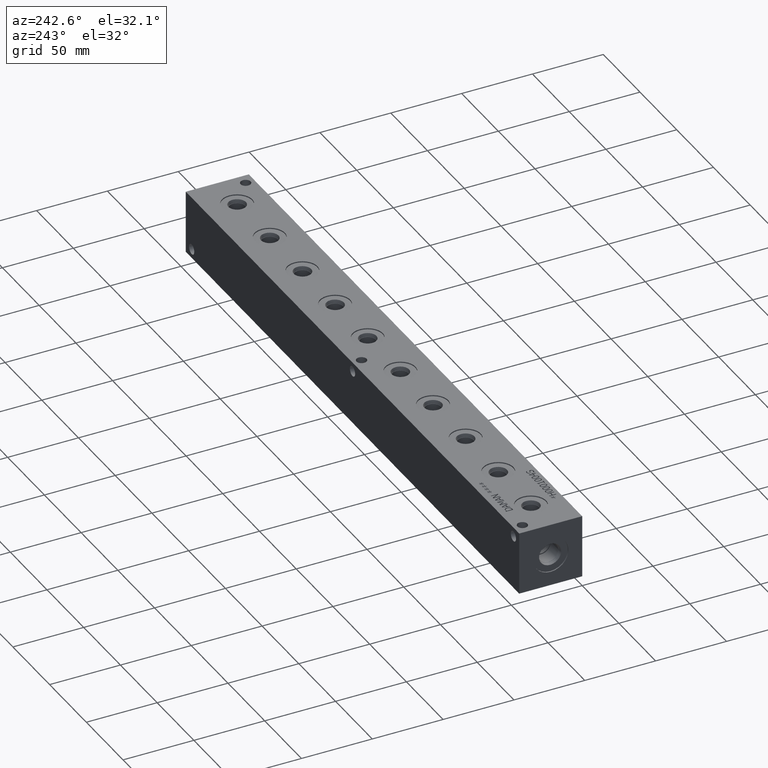
[diagram: clean part render]
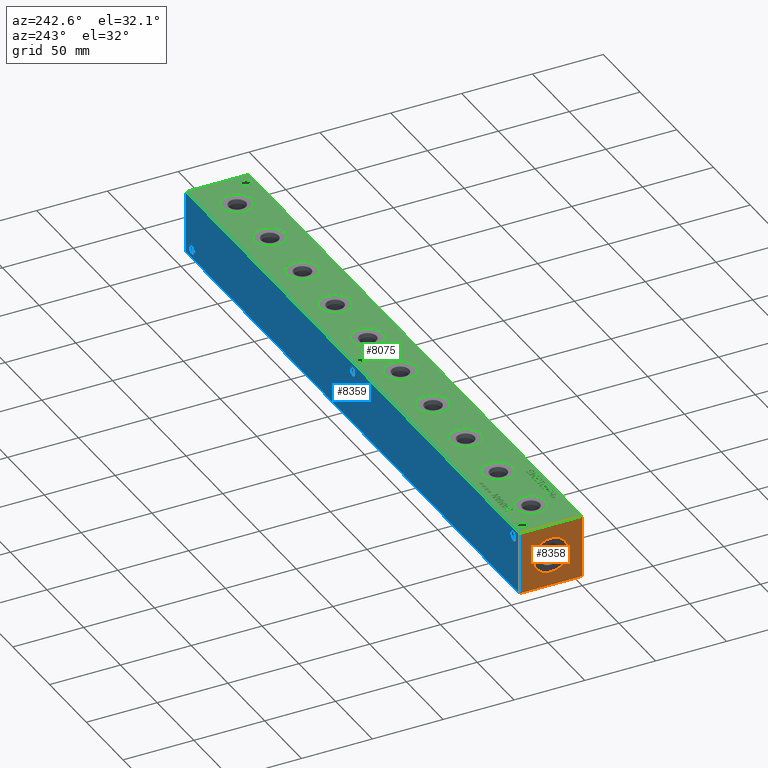
[diagram: same view with three faces highlighted in distinct colors, each labeled with its STEP entity id]
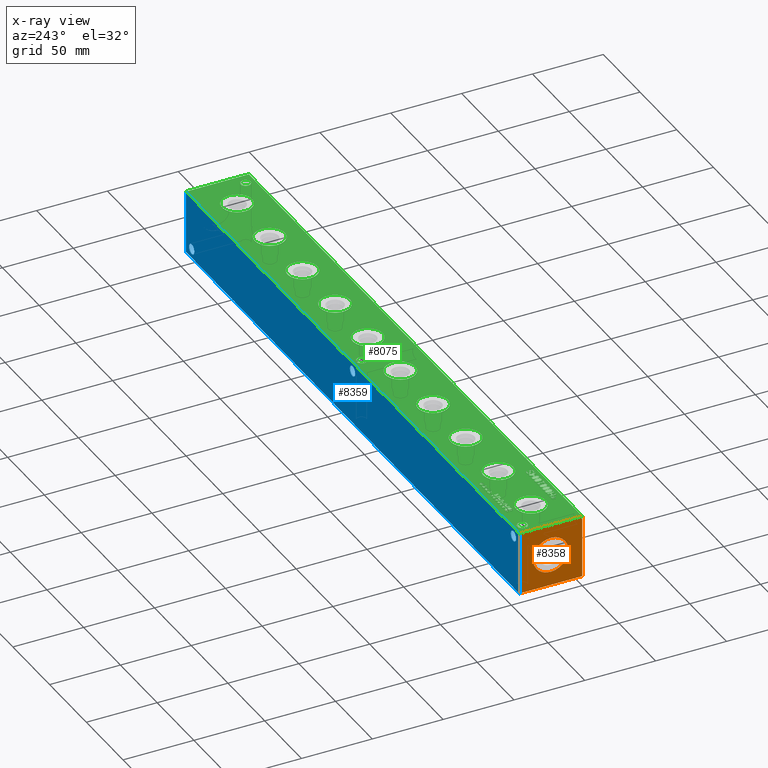
[diagram: x-ray of the same camera — body ghosted, the three highlighted faces saturated]
A machine part, auxiliary view with three faces highlighted in distinct colors.
The next image is the same camera in x-ray (body ghosted, the three faces saturated) — at least one of them is partly hidden behind the body in this view.
Their STEP definitions:

[orange] entity #8358 — the highlighted planar face has unit normal (-1, 0, 0).
#354=CIRCLE('',#8947,12.5095);
#355=CIRCLE('',#8948,12.5095);
#429=FACE_BOUND('',#1623,.T.);
#1123=FACE_OUTER_BOUND('',#1622,.T.);
#1622=EDGE_LOOP('',(#7366,#7367,#7368,#7369));
#1623=EDGE_LOOP('',(#7370,#7371));
#1893=LINE('',#12727,#2643);
#2381=LINE('',#14368,#3131);
#2382=LINE('',#14369,#3132);
#2383=LINE('',#14370,#3133);
#2643=VECTOR('',#9361,10.);
#3131=VECTOR('',#10879,10.);
#3132=VECTOR('',#10880,10.);
#3133=VECTOR('',#10881,10.);
#3409=VERTEX_POINT('',#12720);
#3412=VERTEX_POINT('',#12725);
#3911=VERTEX_POINT('',#14337);
#3912=VERTEX_POINT('',#14338);
#3921=VERTEX_POINT('',#14366);
#3922=VERTEX_POINT('',#14367);
#4333=EDGE_CURVE('',#3412,#3409,#1893,.T.);
#5063=EDGE_CURVE('',#3911,#3912,#354,.T.);
#5064=EDGE_CURVE('',#3912,#3911,#355,.T.);
#5077=EDGE_CURVE('',#3921,#3922,#2381,.T.);
#5078=EDGE_CURVE('',#3922,#3409,#2382,.T.);
#5079=EDGE_CURVE('',#3921,#3412,#2383,.T.);
#7366=ORIENTED_EDGE('',*,*,#5077,.T.);
#7367=ORIENTED_EDGE('',*,*,#5078,.T.);
#7368=ORIENTED_EDGE('',*,*,#4333,.F.);
#7369=ORIENTED_EDGE('',*,*,#5079,.F.);
#7370=ORIENTED_EDGE('',*,*,#5063,.T.);
#7371=ORIENTED_EDGE('',*,*,#5064,.T.);
#7638=PLANE('',#8961);
#8358=ADVANCED_FACE('',(#1123,#429),#7638,.T.);
#8947=AXIS2_PLACEMENT_3D('',#14339,#10845,#10846);
#8948=AXIS2_PLACEMENT_3D('',#14340,#10847,#10848);
#8961=AXIS2_PLACEMENT_3D('',#14365,#10877,#10878);
#9361=DIRECTION('',(0.,-1.,0.));
#10845=DIRECTION('center_axis',(1.,0.,0.));
#10846=DIRECTION('ref_axis',(0.,0.,1.));
#10847=DIRECTION('center_axis',(1.,0.,0.));
#10848=DIRECTION('ref_axis',(0.,0.,1.));
#10877=DIRECTION('center_axis',(-1.,0.,0.));
#10878=DIRECTION('ref_axis',(0.,-1.,0.));
#10879=DIRECTION('',(0.,-1.,0.));
#10880=DIRECTION('',(0.,0.,1.));
#10881=DIRECTION('',(0.,0.,1.));
#12720=CARTESIAN_POINT('',(0.,0.,44.45));
#12725=CARTESIAN_POINT('',(0.,44.45,44.45));
#12727=CARTESIAN_POINT('',(0.,44.45,44.45));
#14337=CARTESIAN_POINT('',(0.,22.225,34.7345));
#14338=CARTESIAN_POINT('',(0.,22.225,9.7155));
#14339=CARTESIAN_POINT('Origin',(0.,22.225,22.225));
#14340=CARTESIAN_POINT('Origin',(0.,22.225,22.225));
#14365=CARTESIAN_POINT('Origin',(0.,44.45,0.));
#14366=CARTESIAN_POINT('',(0.,44.45,0.));
#14367=CARTESIAN_POINT('',(0.,0.,0.));
#14368=CARTESIAN_POINT('',(0.,44.45,0.));
#14369=CARTESIAN_POINT('',(0.,0.,0.));
#14370=CARTESIAN_POINT('',(0.,44.45,0.));

[blue] entity #8359 — the highlighted planar face has unit normal (0, 1, 0).
#164=CIRCLE('',#8621,3.5687);
#167=CIRCLE('',#8631,3.5687);
#170=CIRCLE('',#8640,3.5687);
#430=FACE_BOUND('',#1625,.T.);
#431=FACE_BOUND('',#1626,.T.);
#432=FACE_BOUND('',#1627,.T.);
#1124=FACE_OUTER_BOUND('',#1624,.T.);
#1624=EDGE_LOOP('',(#7372,#7373,#7374,#7375));
#1625=EDGE_LOOP('',(#7376));
#1626=EDGE_LOOP('',(#7377));
#1627=EDGE_LOOP('',(#7378));
#1892=LINE('',#12726,#2642);
#2383=LINE('',#14370,#3133);
#2384=LINE('',#14373,#3134);
#2385=LINE('',#14374,#3135);
#2642=VECTOR('',#9360,10.);
#3133=VECTOR('',#10881,10.);
#3134=VECTOR('',#10884,10.);
#3135=VECTOR('',#10885,10.);
#3411=VERTEX_POINT('',#12723);
#3412=VERTEX_POINT('',#12725);
#3705=VERTEX_POINT('',#13700);
#3710=VERTEX_POINT('',#13718);
#3715=VERTEX_POINT('',#13734);
#3921=VERTEX_POINT('',#14366);
#3923=VERTEX_POINT('',#14372);
#4332=EDGE_CURVE('',#3411,#3412,#1892,.T.);
#4761=EDGE_CURVE('',#3705,#3705,#164,.T.);
#4771=EDGE_CURVE('',#3710,#3710,#167,.T.);
#4780=EDGE_CURVE('',#3715,#3715,#170,.T.);
#5079=EDGE_CURVE('',#3921,#3412,#2383,.T.);
#5080=EDGE_CURVE('',#3923,#3921,#2384,.T.);
#5081=EDGE_CURVE('',#3923,#3411,#2385,.T.);
#7372=ORIENTED_EDGE('',*,*,#5080,.T.);
#7373=ORIENTED_EDGE('',*,*,#5079,.T.);
#7374=ORIENTED_EDGE('',*,*,#4332,.F.);
#7375=ORIENTED_EDGE('',*,*,#5081,.F.);
#7376=ORIENTED_EDGE('',*,*,#4761,.T.);
#7377=ORIENTED_EDGE('',*,*,#4771,.T.);
#7378=ORIENTED_EDGE('',*,*,#4780,.T.);
#7639=PLANE('',#8962);
#8359=ADVANCED_FACE('',(#1124,#430,#431,#432),#7639,.T.);
#8621=AXIS2_PLACEMENT_3D('',#13702,#10089,#10090);
#8631=AXIS2_PLACEMENT_3D('',#13720,#10112,#10113);
#8640=AXIS2_PLACEMENT_3D('',#13736,#10132,#10133);
#8962=AXIS2_PLACEMENT_3D('',#14371,#10882,#10883);
#9360=DIRECTION('',(-1.,0.,0.));
#10089=DIRECTION('center_axis',(0.,-1.,0.));
#10090=DIRECTION('ref_axis',(1.,0.,0.));
#10112=DIRECTION('center_axis',(0.,-1.,0.));
#10113=DIRECTION('ref_axis',(1.,0.,0.));
#10132=DIRECTION('center_axis',(0.,-1.,0.));
#10133=DIRECTION('ref_axis',(1.,0.,0.));
#10881=DIRECTION('',(0.,0.,1.));
#10882=DIRECTION('center_axis',(0.,1.,0.));
#10883=DIRECTION('ref_axis',(-1.,0.,0.));
#10884=DIRECTION('',(-1.,0.,0.));
#10885=DIRECTION('',(0.,0.,1.));
#12723=CARTESIAN_POINT('',(454.025,44.45,44.45));
#12725=CARTESIAN_POINT('',(0.,44.45,44.45));
#12726=CARTESIAN_POINT('',(454.025,44.45,44.45));
#13700=CARTESIAN_POINT('',(442.5061,44.45,6.35));
#13702=CARTESIAN_POINT('Origin',(446.0748,44.45,6.35));
#13718=CARTESIAN_POINT('',(4.3561,44.45,38.1));
#13720=CARTESIAN_POINT('Origin',(7.9248,44.45,38.1));
#13734=CARTESIAN_POINT('',(223.4565,44.45,38.1));
#13736=CARTESIAN_POINT('Origin',(227.0252,44.45,38.1));
#14366=CARTESIAN_POINT('',(0.,44.45,0.));
#14370=CARTESIAN_POINT('',(0.,44.45,0.));
#14371=CARTESIAN_POINT('Origin',(454.025,44.45,0.));
#14372=CARTESIAN_POINT('',(454.025,44.45,0.));
#14373=CARTESIAN_POINT('',(454.025,44.45,0.));
#14374=CARTESIAN_POINT('',(454.025,44.45,0.));

[green] entity #8075 — the highlighted planar face has unit normal (0, 0, 1).
#136=CIRCLE('',#8447,10.6426);
#137=CIRCLE('',#8448,10.6426);
#138=CIRCLE('',#8449,10.6426);
#139=CIRCLE('',#8450,10.6426);
#140=CIRCLE('',#8451,10.6426);
#141=CIRCLE('',#8452,10.6426);
#142=CIRCLE('',#8453,10.6426);
#143=CIRCLE('',#8454,10.6426);
#144=CIRCLE('',#8455,10.6426);
#145=CIRCLE('',#8456,10.6426);
#146=CIRCLE('',#8457,10.6426);
#147=CIRCLE('',#8458,10.6426);
#148=CIRCLE('',#8459,10.6426);
#149=CIRCLE('',#8460,10.6426);
#150=CIRCLE('',#8461,10.6426);
#151=CIRCLE('',#8462,10.6426);
#152=CIRCLE('',#8463,10.6426);
#153=CIRCLE('',#8464,10.6426);
#154=CIRCLE('',#8465,10.6426);
#155=CIRCLE('',#8466,10.6426);
#156=CIRCLE('',#8467,3.5687);
#157=CIRCLE('',#8468,3.5687);
#158=CIRCLE('',#8469,3.5687);
#159=CIRCLE('',#8470,3.5687);
#160=CIRCLE('',#8471,3.5687);
#161=CIRCLE('',#8472,3.5687);
#370=FACE_BOUND('',#1281,.T.);
#371=FACE_BOUND('',#1282,.T.);
#372=FACE_BOUND('',#1283,.T.);
#373=FACE_BOUND('',#1284,.T.);
#374=FACE_BOUND('',#1285,.T.);
#375=FACE_BOUND('',#1286,.T.);
#376=FACE_BOUND('',#1287,.T.);
#377=FACE_BOUND('',#1288,.T.);
#378=FACE_BOUND('',#1289,.T.);
#379=FACE_BOUND('',#1290,.T.);
#380=FACE_BOUND('',#1291,.T.);
#381=FACE_BOUND('',#1292,.T.);
#382=FACE_BOUND('',#1293,.T.);
#383=FACE_BOUND('',#1294,.T.);
#384=FACE_BOUND('',#1295,.T.);
#385=FACE_BOUND('',#1296,.T.);
#386=FACE_BOUND('',#1297,.T.);
#387=FACE_BOUND('',#1298,.T.);
#388=FACE_BOUND('',#1299,.T.);
#389=FACE_BOUND('',#1300,.T.);
#390=FACE_BOUND('',#1301,.T.);
#391=FACE_BOUND('',#1302,.T.);
#392=FACE_BOUND('',#1303,.T.);
#393=FACE_BOUND('',#1304,.T.);
#394=FACE_BOUND('',#1305,.T.);
#395=FACE_BOUND('',#1306,.T.);
#396=FACE_BOUND('',#1307,.T.);
#397=FACE_BOUND('',#1308,.T.);
#398=FACE_BOUND('',#1309,.T.);
#399=FACE_BOUND('',#1310,.T.);
#400=FACE_BOUND('',#1311,.T.);
#401=FACE_BOUND('',#1312,.T.);
#440=B_SPLINE_CURVE_WITH_KNOTS('',2,(#10934,#10935,#10936,#10937),
 .UNSPECIFIED.,.F.,.F.,(3,1,3),(0.,1.,2.),.UNSPECIFIED.);
#458=B_SPLINE_CURVE_WITH_KNOTS('',2,(#11140,#11141,#11142,#11143),
 .UNSPECIFIED.,.F.,.F.,(3,1,3),(0.,1.,2.),.UNSPECIFIED.);
#460=B_SPLINE_CURVE_WITH_KNOTS('',2,(#11161,#11162,#11163,#11164),
 .UNSPECIFIED.,.F.,.F.,(3,1,3),(0.,1.,2.),.UNSPECIFIED.);
#462=B_SPLINE_CURVE_WITH_KNOTS('',2,(#11180,#11181,#11182,#11183),
 .UNSPECIFIED.,.F.,.F.,(3,1,3),(0.,1.,2.),.UNSPECIFIED.);
#464=B_SPLINE_CURVE_WITH_KNOTS('',2,(#11198,#11199,#11200,#11201),
 .UNSPECIFIED.,.F.,.F.,(3,1,3),(0.,1.,2.),.UNSPECIFIED.);
#482=B_SPLINE_CURVE_WITH_KNOTS('',2,(#11369,#11370,#11371,#11372),
 .UNSPECIFIED.,.F.,.F.,(3,1,3),(0.,1.,2.),.UNSPECIFIED.);
#484=B_SPLINE_CURVE_WITH_KNOTS('',2,(#11390,#11391,#11392,#11393),
 .UNSPECIFIED.,.F.,.F.,(3,1,3),(0.,1.,2.),.UNSPECIFIED.);
#486=B_SPLINE_CURVE_WITH_KNOTS('',2,(#11409,#11410,#11411,#11412),
 .UNSPECIFIED.,.F.,.F.,(3,1,3),(0.,1.,2.),.UNSPECIFIED.);
#488=B_SPLINE_CURVE_WITH_KNOTS('',2,(#11427,#11428,#11429,#11430),
 .UNSPECIFIED.,.F.,.F.,(3,1,3),(0.,1.,2.),.UNSPECIFIED.);
#506=B_SPLINE_CURVE_WITH_KNOTS('',2,(#11598,#11599,#11600,#11601),
 .UNSPECIFIED.,.F.,.F.,(3,1,3),(0.,1.,2.),.UNSPECIFIED.);
#508=B_SPLINE_CURVE_WITH_KNOTS('',2,(#11619,#11620,#11621,#11622),
 .UNSPECIFIED.,.F.,.F.,(3,1,3),(0.,1.,2.),.UNSPECIFIED.);
#510=B_SPLINE_CURVE_WITH_KNOTS('',2,(#11638,#11639,#11640,#11641),
 .UNSPECIFIED.,.F.,.F.,(3,1,3),(0.,1.,2.),.UNSPECIFIED.);
#512=B_SPLINE_CURVE_WITH_KNOTS('',2,(#11656,#11657,#11658,#11659),
 .UNSPECIFIED.,.F.,.F.,(3,1,3),(0.,1.,2.),.UNSPECIFIED.);
#530=B_SPLINE_CURVE_WITH_KNOTS('',2,(#12009,#12010,#12011,#12012),
 .UNSPECIFIED.,.F.,.F.,(3,1,3),(0.,1.,2.),.UNSPECIFIED.);
#532=B_SPLINE_CURVE_WITH_KNOTS('',2,(#12030,#12031,#12032,#12033),
 .UNSPECIFIED.,.F.,.F.,(3,1,3),(0.,1.,2.),.UNSPECIFIED.);
#534=B_SPLINE_CURVE_WITH_KNOTS('',2,(#12049,#12050,#12051,#12052),
 .UNSPECIFIED.,.F.,.F.,(3,1,3),(0.,1.,2.),.UNSPECIFIED.);
#536=B_SPLINE_CURVE_WITH_KNOTS('',2,(#12067,#12068,#12069,#12070),
 .UNSPECIFIED.,.F.,.F.,(3,1,3),(0.,1.,2.),.UNSPECIFIED.);
#554=B_SPLINE_CURVE_WITH_KNOTS('',2,(#12238,#12239,#12240,#12241),
 .UNSPECIFIED.,.F.,.F.,(3,1,3),(0.,1.,2.),.UNSPECIFIED.);
#556=B_SPLINE_CURVE_WITH_KNOTS('',2,(#12259,#12260,#12261,#12262),
 .UNSPECIFIED.,.F.,.F.,(3,1,3),(0.,1.,2.),.UNSPECIFIED.);
#558=B_SPLINE_CURVE_WITH_KNOTS('',2,(#12278,#12279,#12280,#12281),
 .UNSPECIFIED.,.F.,.F.,(3,1,3),(0.,1.,2.),.UNSPECIFIED.);
#560=B_SPLINE_CURVE_WITH_KNOTS('',2,(#12296,#12297,#12298,#12299),
 .UNSPECIFIED.,.F.,.F.,(3,1,3),(0.,1.,2.),.UNSPECIFIED.);
#562=B_SPLINE_CURVE_WITH_KNOTS('',2,(#12400,#12401,#12402,#12403),
 .UNSPECIFIED.,.F.,.F.,(3,1,3),(0.,1.,2.),.UNSPECIFIED.);
#564=B_SPLINE_CURVE_WITH_KNOTS('',2,(#12421,#12422,#12423,#12424),
 .UNSPECIFIED.,.F.,.F.,(3,1,3),(0.,1.,2.),.UNSPECIFIED.);
#566=B_SPLINE_CURVE_WITH_KNOTS('',2,(#12440,#12441,#12442,#12443),
 .UNSPECIFIED.,.F.,.F.,(3,1,3),(0.,1.,2.),.UNSPECIFIED.);
#568=B_SPLINE_CURVE_WITH_KNOTS('',2,(#12459,#12460,#12461,#12462),
 .UNSPECIFIED.,.F.,.F.,(3,1,3),(0.,1.,2.),.UNSPECIFIED.);
#570=B_SPLINE_CURVE_WITH_KNOTS('',2,(#12478,#12479,#12480,#12481),
 .UNSPECIFIED.,.F.,.F.,(3,1,3),(0.,1.,2.),.UNSPECIFIED.);
#572=B_SPLINE_CURVE_WITH_KNOTS('',2,(#12497,#12498,#12499,#12500),
 .UNSPECIFIED.,.F.,.F.,(3,1,3),(0.,1.,2.),.UNSPECIFIED.);
#574=B_SPLINE_CURVE_WITH_KNOTS('',2,(#12516,#12517,#12518,#12519),
 .UNSPECIFIED.,.F.,.F.,(3,1,3),(0.,1.,2.),.UNSPECIFIED.);
#576=B_SPLINE_CURVE_WITH_KNOTS('',2,(#12547,#12548,#12549,#12550),
 .UNSPECIFIED.,.F.,.F.,(3,1,3),(0.,1.,2.),.UNSPECIFIED.);
#578=B_SPLINE_CURVE_WITH_KNOTS('',2,(#12566,#12567,#12568,#12569),
 .UNSPECIFIED.,.F.,.F.,(3,1,3),(0.,1.,2.),.UNSPECIFIED.);
#580=B_SPLINE_CURVE_WITH_KNOTS('',2,(#12585,#12586,#12587,#12588),
 .UNSPECIFIED.,.F.,.F.,(3,1,3),(0.,1.,2.),.UNSPECIFIED.);
#582=B_SPLINE_CURVE_WITH_KNOTS('',2,(#12604,#12605,#12606,#12607),
 .UNSPECIFIED.,.F.,.F.,(3,1,3),(0.,1.,2.),.UNSPECIFIED.);
#584=B_SPLINE_CURVE_WITH_KNOTS('',2,(#12623,#12624,#12625,#12626),
 .UNSPECIFIED.,.F.,.F.,(3,1,3),(0.,1.,2.),.UNSPECIFIED.);
#586=B_SPLINE_CURVE_WITH_KNOTS('',2,(#12642,#12643,#12644,#12645),
 .UNSPECIFIED.,.F.,.F.,(3,1,3),(0.,1.,2.),.UNSPECIFIED.);
#588=B_SPLINE_CURVE_WITH_KNOTS('',2,(#12661,#12662,#12663,#12664),
 .UNSPECIFIED.,.F.,.F.,(3,1,3),(0.,1.,2.),.UNSPECIFIED.);
#590=B_SPLINE_CURVE_WITH_KNOTS('',2,(#12680,#12681,#12682,#12683),
 .UNSPECIFIED.,.F.,.F.,(3,1,3),(0.,1.,2.),.UNSPECIFIED.);
#592=B_SPLINE_CURVE_WITH_KNOTS('',2,(#12710,#12711,#12712,#12713),
 .UNSPECIFIED.,.F.,.F.,(3,1,3),(0.,1.,2.),.UNSPECIFIED.);
#594=B_SPLINE_CURVE_WITH_KNOTS('',2,(#12890,#12891,#12892,#12893),
 .UNSPECIFIED.,.F.,.F.,(3,1,3),(0.,1.,2.),.UNSPECIFIED.);
#595=B_SPLINE_CURVE_WITH_KNOTS('',2,(#12895,#12896,#12897,#12898),
 .UNSPECIFIED.,.F.,.F.,(3,1,3),(0.,1.,2.),.UNSPECIFIED.);
#596=B_SPLINE_CURVE_WITH_KNOTS('',2,(#12900,#12901,#12902,#12903),
 .UNSPECIFIED.,.F.,.F.,(3,1,3),(0.,1.,2.),.UNSPECIFIED.);
#597=B_SPLINE_CURVE_WITH_KNOTS('',2,(#12910,#12911,#12912,#12913),
 .UNSPECIFIED.,.F.,.F.,(3,1,3),(0.,1.,2.),.UNSPECIFIED.);
#840=FACE_OUTER_BOUND('',#1280,.T.);
#1280=EDGE_LOOP('',(#5760,#5761,#5762,#5763));
#1281=EDGE_LOOP('',(#5764,#5765,#5766,#5767,#5768,#5769,#5770,#5771,#5772,
#5773,#5774));
#1282=EDGE_LOOP('',(#5775,#5776,#5777,#5778));
#1283=EDGE_LOOP('',(#5779,#5780,#5781,#5782));
#1284=EDGE_LOOP('',(#5783,#5784,#5785,#5786));
#1285=EDGE_LOOP('',(#5787,#5788,#5789,#5790,#5791,#5792,#5793,#5794,#5795,
#5796,#5797,#5798,#5799,#5800,#5801,#5802,#5803,#5804));
#1286=EDGE_LOOP('',(#5805,#5806,#5807,#5808,#5809,#5810,#5811,#5812,#5813,
#5814,#5815,#5816));
#1287=EDGE_LOOP('',(#5817,#5818,#5819,#5820));
#1288=EDGE_LOOP('',(#5821,#5822,#5823,#5824));
#1289=EDGE_LOOP('',(#5825,#5826,#5827,#5828,#5829,#5830,#5831,#5832,#5833,
#5834,#5835));
#1290=EDGE_LOOP('',(#5836,#5837,#5838,#5839,#5840,#5841,#5842,#5843,#5844,
#5845,#5846,#5847,#5848,#5849,#5850,#5851,#5852,#5853,#5854,#5855));
#1291=EDGE_LOOP('',(#5856,#5857));
#1292=EDGE_LOOP('',(#5858,#5859));
#1293=EDGE_LOOP('',(#5860,#5861));
#1294=EDGE_LOOP('',(#5862,#5863));
#1295=EDGE_LOOP('',(#5864,#5865));
#1296=EDGE_LOOP('',(#5866,#5867));
#1297=EDGE_LOOP('',(#5868,#5869));
#1298=EDGE_LOOP('',(#5870,#5871));
#1299=EDGE_LOOP('',(#5872,#5873));
#1300=EDGE_LOOP('',(#5874,#5875));
#1301=EDGE_LOOP('',(#5876,#5877));
#1302=EDGE_LOOP('',(#5878,#5879));
#1303=EDGE_LOOP('',(#5880,#5881));
#1304=EDGE_LOOP('',(#5882,#5883,#5884,#5885,#5886,#5887,#5888,#5889,#5890,
#5891,#5892,#5893,#5894,#5895,#5896,#5897,#5898,#5899));
#1305=EDGE_LOOP('',(#5900,#5901,#5902,#5903,#5904,#5905,#5906,#5907,#5908,
#5909,#5910,#5911,#5912,#5913,#5914,#5915,#5916,#5917));
#1306=EDGE_LOOP('',(#5918,#5919,#5920,#5921,#5922,#5923,#5924,#5925,#5926,
#5927));
#1307=EDGE_LOOP('',(#5928,#5929,#5930,#5931,#5932,#5933,#5934,#5935));
#1308=EDGE_LOOP('',(#5936,#5937,#5938,#5939,#5940,#5941,#5942));
#1309=EDGE_LOOP('',(#5943,#5944,#5945,#5946,#5947,#5948,#5949,#5950));
#1310=EDGE_LOOP('',(#5951,#5952,#5953,#5954,#5955,#5956,#5957,#5958,#5959,
#5960,#5961,#5962,#5963));
#1311=EDGE_LOOP('',(#5964,#5965,#5966,#5967,#5968,#5969,#5970,#5971,#5972,
#5973,#5974,#5975,#5976,#5977,#5978,#5979,#5980,#5981));
#1312=EDGE_LOOP('',(#5982,#5983,#5984,#5985,#5986,#5987,#5988,#5989,#5990,
#5991,#5992,#5993,#5994,#5995,#5996,#5997,#5998,#5999));
#1639=LINE('',#10901,#2389);
#1643=LINE('',#10909,#2393);
#1646=LINE('',#10915,#2396);
#1649=LINE('',#10921,#2399);
#1653=LINE('',#10946,#2403);
#1656=LINE('',#10952,#2406);
#1659=LINE('',#10958,#2409);
#1662=LINE('',#10964,#2412);
#1665=LINE('',#10970,#2415);
#1668=LINE('',#10975,#2418);
#1706=LINE('',#11668,#2456);
#1710=LINE('',#11676,#2460);
#1713=LINE('',#11682,#2463);
#1716=LINE('',#11688,#2466);
#1719=LINE('',#11694,#2469);
#1722=LINE('',#11700,#2472);
#1725=LINE('',#11706,#2475);
#1728=LINE('',#11712,#2478);
#1731=LINE('',#11718,#2481);
#1734=LINE('',#11724,#2484);
#1737=LINE('',#11730,#2487);
#1740=LINE('',#11736,#2490);
#1743=LINE('',#11742,#2493);
#1746=LINE('',#11748,#2496);
#1749=LINE('',#11754,#2499);
#1752=LINE('',#11760,#2502);
#1755=LINE('',#11766,#2505);
#1758=LINE('',#11771,#2508);
#1760=LINE('',#11777,#2510);
#1764=LINE('',#11785,#2514);
#1767=LINE('',#11791,#2517);
#1770=LINE('',#11797,#2520);
#1773=LINE('',#11803,#2523);
#1776=LINE('',#11809,#2526);
#1779=LINE('',#11815,#2529);
#1782=LINE('',#11821,#2532);
#1785=LINE('',#11827,#2535);
#1788=LINE('',#11833,#2538);
#1791=LINE('',#11839,#2541);
#1794=LINE('',#11844,#2544);
#1829=LINE('',#12326,#2579);
#1833=LINE('',#12334,#2583);
#1836=LINE('',#12340,#2586);
#1839=LINE('',#12346,#2589);
#1842=LINE('',#12352,#2592);
#1845=LINE('',#12358,#2595);
#1848=LINE('',#12364,#2598);
#1851=LINE('',#12370,#2601);
#1854=LINE('',#12376,#2604);
#1857=LINE('',#12382,#2607);
#1860=LINE('',#12387,#2610);
#1870=LINE('',#12528,#2620);
#1873=LINE('',#12534,#2623);
#1884=LINE('',#12692,#2634);
#1887=LINE('',#12698,#2637);
#1890=LINE('',#12722,#2640);
#1891=LINE('',#12724,#2641);
#1892=LINE('',#12726,#2642);
#1893=LINE('',#12727,#2643);
#1894=LINE('',#12782,#2644);
#1895=LINE('',#12784,#2645);
#1896=LINE('',#12786,#2646);
#1897=LINE('',#12788,#2647);
#1898=LINE('',#12790,#2648);
#1899=LINE('',#12792,#2649);
#1900=LINE('',#12794,#2650);
#1901=LINE('',#12796,#2651);
#1902=LINE('',#12798,#2652);
#1903=LINE('',#12800,#2653);
#1904=LINE('',#12802,#2654);
#1905=LINE('',#12804,#2655);
#1906=LINE('',#12806,#2656);
#1907=LINE('',#12808,#2657);
#1908=LINE('',#12810,#2658);
#1909=LINE('',#12812,#2659);
#1910=LINE('',#12814,#2660);
#1911=LINE('',#12815,#2661);
#1912=LINE('',#12818,#2662);
#1913=LINE('',#12820,#2663);
#1914=LINE('',#12822,#2664);
#1915=LINE('',#12824,#2665);
#1916=LINE('',#12826,#2666);
#1917=LINE('',#12828,#2667);
#1918=LINE('',#12830,#2668);
#1919=LINE('',#12832,#2669);
#1920=LINE('',#12834,#2670);
#1921=LINE('',#12836,#2671);
#1922=LINE('',#12838,#2672);
#1923=LINE('',#12840,#2673);
#1924=LINE('',#12842,#2674);
#1925=LINE('',#12844,#2675);
#1926=LINE('',#12846,#2676);
#1927=LINE('',#12848,#2677);
#1928=LINE('',#12850,#2678);
#1929=LINE('',#12851,#2679);
#1930=LINE('',#12854,#2680);
#1931=LINE('',#12856,#2681);
#1932=LINE('',#12858,#2682);
#1933=LINE('',#12860,#2683);
#1934=LINE('',#12862,#2684);
#1935=LINE('',#12864,#2685);
#1936=LINE('',#12866,#2686);
#1937=LINE('',#12868,#2687);
#1938=LINE('',#12870,#2688);
#1939=LINE('',#12871,#2689);
#1940=LINE('',#12874,#2690);
#1941=LINE('',#12876,#2691);
#1942=LINE('',#12878,#2692);
#1943=LINE('',#12880,#2693);
#1944=LINE('',#12882,#2694);
#1945=LINE('',#12884,#2695);
#1946=LINE('',#12886,#2696);
#1947=LINE('',#12887,#2697);
#1948=LINE('',#12905,#2698);
#1949=LINE('',#12907,#2699);
#1950=LINE('',#12909,#2700);
#1951=LINE('',#12916,#2701);
#1952=LINE('',#12918,#2702);
#1953=LINE('',#12920,#2703);
#1954=LINE('',#12922,#2704);
#1955=LINE('',#12924,#2705);
#1956=LINE('',#12926,#2706);
#1957=LINE('',#12928,#2707);
#1958=LINE('',#12929,#2708);
#1959=LINE('',#12932,#2709);
#1960=LINE('',#12934,#2710);
#1961=LINE('',#12936,#2711);
#1962=LINE('',#12938,#2712);
#1963=LINE('',#12940,#2713);
#1964=LINE('',#12942,#2714);
#1965=LINE('',#12944,#2715);
#1966=LINE('',#12946,#2716);
#1967=LINE('',#12948,#2717);
#1968=LINE('',#12950,#2718);
#1969=LINE('',#12952,#2719);
#1970=LINE('',#12954,#2720);
#1971=LINE('',#12955,#2721);
#1972=LINE('',#12958,#2722);
#1973=LINE('',#12960,#2723);
#1974=LINE('',#12962,#2724);
#1975=LINE('',#12964,#2725);
#1976=LINE('',#12966,#2726);
#1977=LINE('',#12968,#2727);
#1978=LINE('',#12970,#2728);
#1979=LINE('',#12972,#2729);
#1980=LINE('',#12974,#2730);
#1981=LINE('',#12976,#2731);
#1982=LINE('',#12978,#2732);
#1983=LINE('',#12980,#2733);
#1984=LINE('',#12982,#2734);
#1985=LINE('',#12984,#2735);
#1986=LINE('',#12986,#2736);
#1987=LINE('',#12988,#2737);
#1988=LINE('',#12990,#2738);
#1989=LINE('',#12991,#2739);
#1990=LINE('',#12994,#2740);
#1991=LINE('',#12996,#2741);
#1992=LINE('',#12998,#2742);
#1993=LINE('',#13000,#2743);
#1994=LINE('',#13002,#2744);
#1995=LINE('',#13004,#2745);
#1996=LINE('',#13006,#2746);
#1997=LINE('',#13008,#2747);
#1998=LINE('',#13010,#2748);
#1999=LINE('',#13012,#2749);
#2000=LINE('',#13014,#2750);
#2001=LINE('',#13016,#2751);
#2002=LINE('',#13018,#2752);
#2003=LINE('',#13020,#2753);
#2004=LINE('',#13022,#2754);
#2005=LINE('',#13024,#2755);
#2006=LINE('',#13026,#2756);
#2007=LINE('',#13027,#2757);
#2389=VECTOR('',#8971,10.);
#2393=VECTOR('',#8977,10.);
#2396=VECTOR('',#8982,10.);
#2399=VECTOR('',#8987,10.);
#2403=VECTOR('',#8993,10.);
#2406=VECTOR('',#8998,10.);
#2409=VECTOR('',#9003,10.);
#2412=VECTOR('',#9008,10.);
#2415=VECTOR('',#9013,10.);
#2418=VECTOR('',#9018,10.);
#2456=VECTOR('',#9066,10.);
#2460=VECTOR('',#9072,10.);
#2463=VECTOR('',#9077,10.);
#2466=VECTOR('',#9082,10.);
#2469=VECTOR('',#9087,10.);
#2472=VECTOR('',#9092,10.);
#2475=VECTOR('',#9097,10.);
#2478=VECTOR('',#9102,10.);
#2481=VECTOR('',#9107,10.);
#2484=VECTOR('',#9112,10.);
#2487=VECTOR('',#9117,10.);
#2490=VECTOR('',#9122,10.);
#2493=VECTOR('',#9127,10.);
#2496=VECTOR('',#9132,10.);
#2499=VECTOR('',#9137,10.);
#2502=VECTOR('',#9142,10.);
#2505=VECTOR('',#9147,10.);
#2508=VECTOR('',#9152,10.);
#2510=VECTOR('',#9158,10.);
#2514=VECTOR('',#9164,10.);
#2517=VECTOR('',#9169,10.);
#2520=VECTOR('',#9174,10.);
#2523=VECTOR('',#9179,10.);
#2526=VECTOR('',#9184,10.);
#2529=VECTOR('',#9189,10.);
#2532=VECTOR('',#9194,10.);
#2535=VECTOR('',#9199,10.);
#2538=VECTOR('',#9204,10.);
#2541=VECTOR('',#9209,10.);
#2544=VECTOR('',#9214,10.);
#2579=VECTOR('',#9263,10.);
#2583=VECTOR('',#9269,10.);
#2586=VECTOR('',#9274,10.);
#2589=VECTOR('',#9279,10.);
#2592=VECTOR('',#9284,10.);
#2595=VECTOR('',#9289,10.);
#2598=VECTOR('',#9294,10.);
#2601=VECTOR('',#9299,10.);
#2604=VECTOR('',#9304,10.);
#2607=VECTOR('',#9309,10.);
#2610=VECTOR('',#9314,10.);
#2620=VECTOR('',#9328,10.);
#2623=VECTOR('',#9333,10.);
#2634=VECTOR('',#9346,10.);
#2637=VECTOR('',#9351,10.);
#2640=VECTOR('',#9358,10.);
#2641=VECTOR('',#9359,10.);
#2642=VECTOR('',#9360,10.);
#2643=VECTOR('',#9361,10.);
#2644=VECTOR('',#9414,10.);
#2645=VECTOR('',#9415,10.);
#2646=VECTOR('',#9416,10.);
#2647=VECTOR('',#9417,10.);
#2648=VECTOR('',#9418,10.);
#2649=VECTOR('',#9419,10.);
#2650=VECTOR('',#9420,10.);
#2651=VECTOR('',#9421,10.);
#2652=VECTOR('',#9422,10.);
#2653=VECTOR('',#9423,10.);
#2654=VECTOR('',#9424,10.);
#2655=VECTOR('',#9425,10.);
#2656=VECTOR('',#9426,10.);
#2657=VECTOR('',#9427,10.);
#2658=VECTOR('',#9428,10.);
#2659=VECTOR('',#9429,10.);
#2660=VECTOR('',#9430,10.);
#2661=VECTOR('',#9431,10.);
#2662=VECTOR('',#9432,10.);
#2663=VECTOR('',#9433,10.);
#2664=VECTOR('',#9434,10.);
#2665=VECTOR('',#9435,10.);
#2666=VECTOR('',#9436,10.);
#2667=VECTOR('',#9437,10.);
#2668=VECTOR('',#9438,10.);
#2669=VECTOR('',#9439,10.);
#2670=VECTOR('',#9440,10.);
#2671=VECTOR('',#9441,10.);
#2672=VECTOR('',#9442,10.);
#2673=VECTOR('',#9443,10.);
#2674=VECTOR('',#9444,10.);
#2675=VECTOR('',#9445,10.);
#2676=VECTOR('',#9446,10.);
#2677=VECTOR('',#9447,10.);
#2678=VECTOR('',#9448,10.);
#2679=VECTOR('',#9449,10.);
#2680=VECTOR('',#9450,10.);
#2681=VECTOR('',#9451,10.);
#2682=VECTOR('',#9452,10.);
#2683=VECTOR('',#9453,10.);
#2684=VECTOR('',#9454,10.);
#2685=VECTOR('',#9455,10.);
#2686=VECTOR('',#9456,10.);
#2687=VECTOR('',#9457,10.);
#2688=VECTOR('',#9458,10.);
#2689=VECTOR('',#9459,10.);
#2690=VECTOR('',#9460,10.);
#2691=VECTOR('',#9461,10.);
#2692=VECTOR('',#9462,10.);
#2693=VECTOR('',#9463,10.);
#2694=VECTOR('',#9464,10.);
#2695=VECTOR('',#9465,10.);
#2696=VECTOR('',#9466,10.);
#2697=VECTOR('',#9467,10.);
#2698=VECTOR('',#9468,10.);
#2699=VECTOR('',#9469,10.);
#2700=VECTOR('',#9470,10.);
#2701=VECTOR('',#9471,10.);
#2702=VECTOR('',#9472,10.);
#2703=VECTOR('',#9473,10.);
#2704=VECTOR('',#9474,10.);
#2705=VECTOR('',#9475,10.);
#2706=VECTOR('',#9476,10.);
#2707=VECTOR('',#9477,10.);
#2708=VECTOR('',#9478,10.);
#2709=VECTOR('',#9479,10.);
#2710=VECTOR('',#9480,10.);
#2711=VECTOR('',#9481,10.);
#2712=VECTOR('',#9482,10.);
#2713=VECTOR('',#9483,10.);
#2714=VECTOR('',#9484,10.);
#2715=VECTOR('',#9485,10.);
#2716=VECTOR('',#9486,10.);
#2717=VECTOR('',#9487,10.);
#2718=VECTOR('',#9488,10.);
#2719=VECTOR('',#9489,10.);
#2720=VECTOR('',#9490,10.);
#2721=VECTOR('',#9491,10.);
#2722=VECTOR('',#9492,10.);
#2723=VECTOR('',#9493,10.);
#2724=VECTOR('',#9494,10.);
#2725=VECTOR('',#9495,10.);
#2726=VECTOR('',#9496,10.);
#2727=VECTOR('',#9497,10.);
#2728=VECTOR('',#9498,10.);
#2729=VECTOR('',#9499,10.);
#2730=VECTOR('',#9500,10.);
#2731=VECTOR('',#9501,10.);
#2732=VECTOR('',#9502,10.);
#2733=VECTOR('',#9503,10.);
#2734=VECTOR('',#9504,10.);
#2735=VECTOR('',#9505,10.);
#2736=VECTOR('',#9506,10.);
#2737=VECTOR('',#9507,10.);
#2738=VECTOR('',#9508,10.);
#2739=VECTOR('',#9509,10.);
#2740=VECTOR('',#9510,10.);
#2741=VECTOR('',#9511,10.);
#2742=VECTOR('',#9512,10.);
#2743=VECTOR('',#9513,10.);
#2744=VECTOR('',#9514,10.);
#2745=VECTOR('',#9515,10.);
#2746=VECTOR('',#9516,10.);
#2747=VECTOR('',#9517,10.);
#2748=VECTOR('',#9518,10.);
#2749=VECTOR('',#9519,10.);
#2750=VECTOR('',#9520,10.);
#2751=VECTOR('',#9521,10.);
#2752=VECTOR('',#9522,10.);
#2753=VECTOR('',#9523,10.);
#2754=VECTOR('',#9524,10.);
#2755=VECTOR('',#9525,10.);
#2756=VECTOR('',#9526,10.);
#2757=VECTOR('',#9527,10.);
#3139=VERTEX_POINT('',#10899);
#3140=VERTEX_POINT('',#10900);
#3143=VERTEX_POINT('',#10908);
#3145=VERTEX_POINT('',#10914);
#3147=VERTEX_POINT('',#10920);
#3149=VERTEX_POINT('',#10933);
#3151=VERTEX_POINT('',#10945);
#3153=VERTEX_POINT('',#10951);
#3155=VERTEX_POINT('',#10957);
#3157=VERTEX_POINT('',#10963);
#3159=VERTEX_POINT('',#10969);
#3177=VERTEX_POINT('',#11138);
#3178=VERTEX_POINT('',#11139);
#3181=VERTEX_POINT('',#11160);
#3183=VERTEX_POINT('',#11179);
#3201=VERTEX_POINT('',#11367);
#3202=VERTEX_POINT('',#11368);
#3205=VERTEX_POINT('',#11389);
#3207=VERTEX_POINT('',#11408);
#3225=VERTEX_POINT('',#11596);
#3226=VERTEX_POINT('',#11597);
#3229=VERTEX_POINT('',#11618);
#3231=VERTEX_POINT('',#11637);
#3233=VERTEX_POINT('',#11666);
#3234=VERTEX_POINT('',#11667);
#3237=VERTEX_POINT('',#11675);
#3239=VERTEX_POINT('',#11681);
#3241=VERTEX_POINT('',#11687);
#3243=VERTEX_POINT('',#11693);
#3245=VERTEX_POINT('',#11699);
#3247=VERTEX_POINT('',#11705);
#3249=VERTEX_POINT('',#11711);
#3251=VERTEX_POINT('',#11717);
#3253=VERTEX_POINT('',#11723);
#3255=VERTEX_POINT('',#11729);
#3257=VERTEX_POINT('',#11735);
#3259=VERTEX_POINT('',#11741);
#3261=VERTEX_POINT('',#11747);
#3263=VERTEX_POINT('',#11753);
#3265=VERTEX_POINT('',#11759);
#3267=VERTEX_POINT('',#11765);
#3269=VERTEX_POINT('',#11775);
#3270=VERTEX_POINT('',#11776);
#3273=VERTEX_POINT('',#11784);
#3275=VERTEX_POINT('',#11790);
#3277=VERTEX_POINT('',#11796);
#3279=VERTEX_POINT('',#11802);
#3281=VERTEX_POINT('',#11808);
#3283=VERTEX_POINT('',#11814);
#3285=VERTEX_POINT('',#11820);
#3287=VERTEX_POINT('',#11826);
#3289=VERTEX_POINT('',#11832);
#3291=VERTEX_POINT('',#11838);
#3309=VERTEX_POINT('',#12007);
#3310=VERTEX_POINT('',#12008);
#3313=VERTEX_POINT('',#12029);
#3315=VERTEX_POINT('',#12048);
#3333=VERTEX_POINT('',#12236);
#3334=VERTEX_POINT('',#12237);
#3337=VERTEX_POINT('',#12258);
#3339=VERTEX_POINT('',#12277);
#3347=VERTEX_POINT('',#12324);
#3348=VERTEX_POINT('',#12325);
#3351=VERTEX_POINT('',#12333);
#3353=VERTEX_POINT('',#12339);
#3355=VERTEX_POINT('',#12345);
#3357=VERTEX_POINT('',#12351);
#3359=VERTEX_POINT('',#12357);
#3361=VERTEX_POINT('',#12363);
#3363=VERTEX_POINT('',#12369);
#3365=VERTEX_POINT('',#12375);
#3367=VERTEX_POINT('',#12381);
#3369=VERTEX_POINT('',#12398);
#3370=VERTEX_POINT('',#12399);
#3373=VERTEX_POINT('',#12420);
#3375=VERTEX_POINT('',#12439);
#3377=VERTEX_POINT('',#12458);
#3379=VERTEX_POINT('',#12477);
#3381=VERTEX_POINT('',#12496);
#3383=VERTEX_POINT('',#12515);
#3385=VERTEX_POINT('',#12527);
#3387=VERTEX_POINT('',#12533);
#3389=VERTEX_POINT('',#12546);
#3391=VERTEX_POINT('',#12565);
#3393=VERTEX_POINT('',#12584);
#3395=VERTEX_POINT('',#12603);
#3397=VERTEX_POINT('',#12622);
#3399=VERTEX_POINT('',#12641);
#3401=VERTEX_POINT('',#12660);
#3403=VERTEX_POINT('',#12679);
#3405=VERTEX_POINT('',#12691);
#3407=VERTEX_POINT('',#12697);
#3409=VERTEX_POINT('',#12720);
#3410=VERTEX_POINT('',#12721);
#3411=VERTEX_POINT('',#12723);
#3412=VERTEX_POINT('',#12725);
#3413=VERTEX_POINT('',#12728);
#3414=VERTEX_POINT('',#12729);
#3415=VERTEX_POINT('',#12732);
#3416=VERTEX_POINT('',#12733);
#3417=VERTEX_POINT('',#12736);
#3418=VERTEX_POINT('',#12737);
#3419=VERTEX_POINT('',#12740);
#3420=VERTEX_POINT('',#12741);
#3421=VERTEX_POINT('',#12744);
#3422=VERTEX_POINT('',#12745);
#3423=VERTEX_POINT('',#12748);
#3424=VERTEX_POINT('',#12749);
#3425=VERTEX_POINT('',#12752);
#3426=VERTEX_POINT('',#12753);
#3427=VERTEX_POINT('',#12756);
#3428=VERTEX_POINT('',#12757);
#3429=VERTEX_POINT('',#12760);
#3430=VERTEX_POINT('',#12761);
#3431=VERTEX_POINT('',#12764);
#3432=VERTEX_POINT('',#12765);
#3433=VERTEX_POINT('',#12768);
#3434=VERTEX_POINT('',#12769);
#3435=VERTEX_POINT('',#12772);
#3436=VERTEX_POINT('',#12773);
#3437=VERTEX_POINT('',#12776);
#3438=VERTEX_POINT('',#12777);
#3439=VERTEX_POINT('',#12780);
#3440=VERTEX_POINT('',#12781);
#3441=VERTEX_POINT('',#12783);
#3442=VERTEX_POINT('',#12785);
#3443=VERTEX_POINT('',#12787);
#3444=VERTEX_POINT('',#12789);
#3445=VERTEX_POINT('',#12791);
#3446=VERTEX_POINT('',#12793);
#3447=VERTEX_POINT('',#12795);
#3448=VERTEX_POINT('',#12797);
#3449=VERTEX_POINT('',#12799);
#3450=VERTEX_POINT('',#12801);
#3451=VERTEX_POINT('',#12803);
#3452=VERTEX_POINT('',#12805);
#3453=VERTEX_POINT('',#12807);
#3454=VERTEX_POINT('',#12809);
#3455=VERTEX_POINT('',#12811);
#3456=VERTEX_POINT('',#12813);
#3457=VERTEX_POINT('',#12816);
#3458=VERTEX_POINT('',#12817);
#3459=VERTEX_POINT('',#12819);
#3460=VERTEX_POINT('',#12821);
#3461=VERTEX_POINT('',#12823);
#3462=VERTEX_POINT('',#12825);
#3463=VERTEX_POINT('',#12827);
#3464=VERTEX_POINT('',#12829);
#3465=VERTEX_POINT('',#12831);
#3466=VERTEX_POINT('',#12833);
#3467=VERTEX_POINT('',#12835);
#3468=VERTEX_POINT('',#12837);
#3469=VERTEX_POINT('',#12839);
#3470=VERTEX_POINT('',#12841);
#3471=VERTEX_POINT('',#12843);
#3472=VERTEX_POINT('',#12845);
#3473=VERTEX_POINT('',#12847);
#3474=VERTEX_POINT('',#12849);
#3475=VERTEX_POINT('',#12852);
#3476=VERTEX_POINT('',#12853);
#3477=VERTEX_POINT('',#12855);
#3478=VERTEX_POINT('',#12857);
#3479=VERTEX_POINT('',#12859);
#3480=VERTEX_POINT('',#12861);
#3481=VERTEX_POINT('',#12863);
#3482=VERTEX_POINT('',#12865);
#3483=VERTEX_POINT('',#12867);
#3484=VERTEX_POINT('',#12869);
#3485=VERTEX_POINT('',#12872);
#3486=VERTEX_POINT('',#12873);
#3487=VERTEX_POINT('',#12875);
#3488=VERTEX_POINT('',#12877);
#3489=VERTEX_POINT('',#12879);
#3490=VERTEX_POINT('',#12881);
#3491=VERTEX_POINT('',#12883);
#3492=VERTEX_POINT('',#12885);
#3493=VERTEX_POINT('',#12888);
#3494=VERTEX_POINT('',#12889);
#3495=VERTEX_POINT('',#12894);
#3496=VERTEX_POINT('',#12899);
#3497=VERTEX_POINT('',#12904);
#3498=VERTEX_POINT('',#12906);
#3499=VERTEX_POINT('',#12908);
#3500=VERTEX_POINT('',#12914);
#3501=VERTEX_POINT('',#12915);
#3502=VERTEX_POINT('',#12917);
#3503=VERTEX_POINT('',#12919);
#3504=VERTEX_POINT('',#12921);
#3505=VERTEX_POINT('',#12923);
#3506=VERTEX_POINT('',#12925);
#3507=VERTEX_POINT('',#12927);
#3508=VERTEX_POINT('',#12930);
#3509=VERTEX_POINT('',#12931);
#3510=VERTEX_POINT('',#12933);
#3511=VERTEX_POINT('',#12935);
#3512=VERTEX_POINT('',#12937);
#3513=VERTEX_POINT('',#12939);
#3514=VERTEX_POINT('',#12941);
#3515=VERTEX_POINT('',#12943);
#3516=VERTEX_POINT('',#12945);
#3517=VERTEX_POINT('',#12947);
#3518=VERTEX_POINT('',#12949);
#3519=VERTEX_POINT('',#12951);
#3520=VERTEX_POINT('',#12953);
#3521=VERTEX_POINT('',#12956);
#3522=VERTEX_POINT('',#12957);
#3523=VERTEX_POINT('',#12959);
#3524=VERTEX_POINT('',#12961);
#3525=VERTEX_POINT('',#12963);
#3526=VERTEX_POINT('',#12965);
#3527=VERTEX_POINT('',#12967);
#3528=VERTEX_POINT('',#12969);
#3529=VERTEX_POINT('',#12971);
#3530=VERTEX_POINT('',#12973);
#3531=VERTEX_POINT('',#12975);
#3532=VERTEX_POINT('',#12977);
#3533=VERTEX_POINT('',#12979);
#3534=VERTEX_POINT('',#12981);
#3535=VERTEX_POINT('',#12983);
#3536=VERTEX_POINT('',#12985);
#3537=VERTEX_POINT('',#12987);
#3538=VERTEX_POINT('',#12989);
#3539=VERTEX_POINT('',#12992);
#3540=VERTEX_POINT('',#12993);
#3541=VERTEX_POINT('',#12995);
#3542=VERTEX_POINT('',#12997);
#3543=VERTEX_POINT('',#12999);
#3544=VERTEX_POINT('',#13001);
#3545=VERTEX_POINT('',#13003);
#3546=VERTEX_POINT('',#13005);
#3547=VERTEX_POINT('',#13007);
#3548=VERTEX_POINT('',#13009);
#3549=VERTEX_POINT('',#13011);
#3550=VERTEX_POINT('',#13013);
#3551=VERTEX_POINT('',#13015);
#3552=VERTEX_POINT('',#13017);
#3553=VERTEX_POINT('',#13019);
#3554=VERTEX_POINT('',#13021);
#3555=VERTEX_POINT('',#13023);
#3556=VERTEX_POINT('',#13025);
#3925=EDGE_CURVE('',#3139,#3140,#1639,.T.);
#3929=EDGE_CURVE('',#3143,#3139,#1643,.T.);
#3932=EDGE_CURVE('',#3145,#3143,#1646,.T.);
#3935=EDGE_CURVE('',#3147,#3145,#1649,.T.);
#3938=EDGE_CURVE('',#3149,#3147,#440,.T.);
#3941=EDGE_CURVE('',#3151,#3149,#1653,.T.);
#3944=EDGE_CURVE('',#3153,#3151,#1656,.T.);
#3947=EDGE_CURVE('',#3155,#3153,#1659,.T.);
#3950=EDGE_CURVE('',#3157,#3155,#1662,.T.);
#3953=EDGE_CURVE('',#3159,#3157,#1665,.T.);
#3956=EDGE_CURVE('',#3140,#3159,#1668,.T.);
#3982=EDGE_CURVE('',#3177,#3178,#458,.T.);
#3986=EDGE_CURVE('',#3181,#3177,#460,.T.);
#3989=EDGE_CURVE('',#3183,#3181,#462,.T.);
#3992=EDGE_CURVE('',#3178,#3183,#464,.T.);
#4018=EDGE_CURVE('',#3201,#3202,#482,.T.);
#4022=EDGE_CURVE('',#3205,#3201,#484,.T.);
#4025=EDGE_CURVE('',#3207,#3205,#486,.T.);
#4028=EDGE_CURVE('',#3202,#3207,#488,.T.);
#4054=EDGE_CURVE('',#3225,#3226,#506,.T.);
#4058=EDGE_CURVE('',#3229,#3225,#508,.T.);
#4061=EDGE_CURVE('',#3231,#3229,#510,.T.);
#4064=EDGE_CURVE('',#3226,#3231,#512,.T.);
#4066=EDGE_CURVE('',#3233,#3234,#1706,.T.);
#4070=EDGE_CURVE('',#3237,#3233,#1710,.T.);
#4073=EDGE_CURVE('',#3239,#3237,#1713,.T.);
#4076=EDGE_CURVE('',#3241,#3239,#1716,.T.);
#4079=EDGE_CURVE('',#3243,#3241,#1719,.T.);
#4082=EDGE_CURVE('',#3245,#3243,#1722,.T.);
#4085=EDGE_CURVE('',#3247,#3245,#1725,.T.);
#4088=EDGE_CURVE('',#3249,#3247,#1728,.T.);
#4091=EDGE_CURVE('',#3251,#3249,#1731,.T.);
#4094=EDGE_CURVE('',#3253,#3251,#1734,.T.);
#4097=EDGE_CURVE('',#3255,#3253,#1737,.T.);
#4100=EDGE_CURVE('',#3257,#3255,#1740,.T.);
#4103=EDGE_CURVE('',#3259,#3257,#1743,.T.);
#4106=EDGE_CURVE('',#3261,#3259,#1746,.T.);
#4109=EDGE_CURVE('',#3263,#3261,#1749,.T.);
#4112=EDGE_CURVE('',#3265,#3263,#1752,.T.);
#4115=EDGE_CURVE('',#3267,#3265,#1755,.T.);
#4118=EDGE_CURVE('',#3234,#3267,#1758,.T.);
#4120=EDGE_CURVE('',#3269,#3270,#1760,.T.);
#4124=EDGE_CURVE('',#3273,#3269,#1764,.T.);
#4127=EDGE_CURVE('',#3275,#3273,#1767,.T.);
#4130=EDGE_CURVE('',#3277,#3275,#1770,.T.);
#4133=EDGE_CURVE('',#3279,#3277,#1773,.T.);
#4136=EDGE_CURVE('',#3281,#3279,#1776,.T.);
#4139=EDGE_CURVE('',#3283,#3281,#1779,.T.);
#4142=EDGE_CURVE('',#3285,#3283,#1782,.T.);
#4145=EDGE_CURVE('',#3287,#3285,#1785,.T.);
#4148=EDGE_CURVE('',#3289,#3287,#1788,.T.);
#4151=EDGE_CURVE('',#3291,#3289,#1791,.T.);
#4154=EDGE_CURVE('',#3270,#3291,#1794,.T.);
#4180=EDGE_CURVE('',#3309,#3310,#530,.T.);
#4184=EDGE_CURVE('',#3313,#3309,#532,.T.);
#4187=EDGE_CURVE('',#3315,#3313,#534,.T.);
#4190=EDGE_CURVE('',#3310,#3315,#536,.T.);
#4216=EDGE_CURVE('',#3333,#3334,#554,.T.);
#4220=EDGE_CURVE('',#3337,#3333,#556,.T.);
#4223=EDGE_CURVE('',#3339,#3337,#558,.T.);
#4226=EDGE_CURVE('',#3334,#3339,#560,.T.);
#4237=EDGE_CURVE('',#3347,#3348,#1829,.T.);
#4241=EDGE_CURVE('',#3351,#3347,#1833,.T.);
#4244=EDGE_CURVE('',#3353,#3351,#1836,.T.);
#4247=EDGE_CURVE('',#3355,#3353,#1839,.T.);
#4250=EDGE_CURVE('',#3357,#3355,#1842,.T.);
#4253=EDGE_CURVE('',#3359,#3357,#1845,.T.);
#4256=EDGE_CURVE('',#3361,#3359,#1848,.T.);
#4259=EDGE_CURVE('',#3363,#3361,#1851,.T.);
#4262=EDGE_CURVE('',#3365,#3363,#1854,.T.);
#4265=EDGE_CURVE('',#3367,#3365,#1857,.T.);
#4268=EDGE_CURVE('',#3348,#3367,#1860,.T.);
#4270=EDGE_CURVE('',#3369,#3370,#562,.T.);
#4274=EDGE_CURVE('',#3373,#3369,#564,.T.);
#4277=EDGE_CURVE('',#3375,#3373,#566,.T.);
#4280=EDGE_CURVE('',#3377,#3375,#568,.T.);
#4283=EDGE_CURVE('',#3379,#3377,#570,.T.);
#4286=EDGE_CURVE('',#3381,#3379,#572,.T.);
#4289=EDGE_CURVE('',#3383,#3381,#574,.T.);
#4292=EDGE_CURVE('',#3385,#3383,#1870,.T.);
#4295=EDGE_CURVE('',#3387,#3385,#1873,.T.);
#4298=EDGE_CURVE('',#3389,#3387,#576,.T.);
#4301=EDGE_CURVE('',#3391,#3389,#578,.T.);
#4304=EDGE_CURVE('',#3393,#3391,#580,.T.);
#4307=EDGE_CURVE('',#3395,#3393,#582,.T.);
#4310=EDGE_CURVE('',#3397,#3395,#584,.T.);
#4313=EDGE_CURVE('',#3399,#3397,#586,.T.);
#4316=EDGE_CURVE('',#3401,#3399,#588,.T.);
#4319=EDGE_CURVE('',#3403,#3401,#590,.T.);
#4322=EDGE_CURVE('',#3405,#3403,#1884,.T.);
#4325=EDGE_CURVE('',#3407,#3405,#1887,.T.);
#4328=EDGE_CURVE('',#3370,#3407,#592,.T.);
#4330=EDGE_CURVE('',#3409,#3410,#1890,.T.);
#4331=EDGE_CURVE('',#3410,#3411,#1891,.T.);
#4332=EDGE_CURVE('',#3411,#3412,#1892,.T.);
#4333=EDGE_CURVE('',#3412,#3409,#1893,.T.);
#4334=EDGE_CURVE('',#3413,#3414,#136,.T.);
#4335=EDGE_CURVE('',#3414,#3413,#137,.T.);
#4336=EDGE_CURVE('',#3415,#3416,#138,.T.);
#4337=EDGE_CURVE('',#3416,#3415,#139,.T.);
#4338=EDGE_CURVE('',#3417,#3418,#140,.T.);
#4339=EDGE_CURVE('',#3418,#3417,#141,.T.);
#4340=EDGE_CURVE('',#3419,#3420,#142,.T.);
#4341=EDGE_CURVE('',#3420,#3419,#143,.T.);
#4342=EDGE_CURVE('',#3421,#3422,#144,.T.);
#4343=EDGE_CURVE('',#3422,#3421,#145,.T.);
#4344=EDGE_CURVE('',#3423,#3424,#146,.T.);
#4345=EDGE_CURVE('',#3424,#3423,#147,.T.);
#4346=EDGE_CURVE('',#3425,#3426,#148,.T.);
#4347=EDGE_CURVE('',#3426,#3425,#149,.T.);
#4348=EDGE_CURVE('',#3427,#3428,#150,.T.);
#4349=EDGE_CURVE('',#3428,#3427,#151,.T.);
#4350=EDGE_CURVE('',#3429,#3430,#152,.T.);
#4351=EDGE_CURVE('',#3430,#3429,#153,.T.);
#4352=EDGE_CURVE('',#3431,#3432,#154,.T.);
#4353=EDGE_CURVE('',#3432,#3431,#155,.T.);
#4354=EDGE_CURVE('',#3433,#3434,#156,.T.);
#4355=EDGE_CURVE('',#3434,#3433,#157,.T.);
#4356=EDGE_CURVE('',#3435,#3436,#158,.T.);
#4357=EDGE_CURVE('',#3436,#3435,#159,.T.);
#4358=EDGE_CURVE('',#3437,#3438,#160,.T.);
#4359=EDGE_CURVE('',#3438,#3437,#161,.T.);
#4360=EDGE_CURVE('',#3439,#3440,#1894,.T.);
#4361=EDGE_CURVE('',#3440,#3441,#1895,.T.);
#4362=EDGE_CURVE('',#3441,#3442,#1896,.T.);
#4363=EDGE_CURVE('',#3442,#3443,#1897,.T.);
#4364=EDGE_CURVE('',#3443,#3444,#1898,.T.);
#4365=EDGE_CURVE('',#3444,#3445,#1899,.T.);
#4366=EDGE_CURVE('',#3445,#3446,#1900,.T.);
#4367=EDGE_CURVE('',#3446,#3447,#1901,.T.);
#4368=EDGE_CURVE('',#3447,#3448,#1902,.T.);
#4369=EDGE_CURVE('',#3448,#3449,#1903,.T.);
#4370=EDGE_CURVE('',#3449,#3450,#1904,.T.);
#4371=EDGE_CURVE('',#3450,#3451,#1905,.T.);
#4372=EDGE_CURVE('',#3451,#3452,#1906,.T.);
#4373=EDGE_CURVE('',#3452,#3453,#1907,.T.);
#4374=EDGE_CURVE('',#3453,#3454,#1908,.T.);
#4375=EDGE_CURVE('',#3454,#3455,#1909,.T.);
#4376=EDGE_CURVE('',#3455,#3456,#1910,.T.);
#4377=EDGE_CURVE('',#3456,#3439,#1911,.T.);
#4378=EDGE_CURVE('',#3457,#3458,#1912,.T.);
#4379=EDGE_CURVE('',#3458,#3459,#1913,.T.);
#4380=EDGE_CURVE('',#3459,#3460,#1914,.T.);
#4381=EDGE_CURVE('',#3460,#3461,#1915,.T.);
#4382=EDGE_CURVE('',#3461,#3462,#1916,.T.);
#4383=EDGE_CURVE('',#3462,#3463,#1917,.T.);
#4384=EDGE_CURVE('',#3463,#3464,#1918,.T.);
#4385=EDGE_CURVE('',#3464,#3465,#1919,.T.);
#4386=EDGE_CURVE('',#3465,#3466,#1920,.T.);
#4387=EDGE_CURVE('',#3466,#3467,#1921,.T.);
#4388=EDGE_CURVE('',#3467,#3468,#1922,.T.);
#4389=EDGE_CURVE('',#3468,#3469,#1923,.T.);
#4390=EDGE_CURVE('',#3469,#3470,#1924,.T.);
#4391=EDGE_CURVE('',#3470,#3471,#1925,.T.);
#4392=EDGE_CURVE('',#3471,#3472,#1926,.T.);
#4393=EDGE_CURVE('',#3472,#3473,#1927,.T.);
#4394=EDGE_CURVE('',#3473,#3474,#1928,.T.);
#4395=EDGE_CURVE('',#3474,#3457,#1929,.T.);
#4396=EDGE_CURVE('',#3475,#3476,#1930,.T.);
#4397=EDGE_CURVE('',#3476,#3477,#1931,.T.);
#4398=EDGE_CURVE('',#3477,#3478,#1932,.T.);
#4399=EDGE_CURVE('',#3478,#3479,#1933,.T.);
#4400=EDGE_CURVE('',#3479,#3480,#1934,.T.);
#4401=EDGE_CURVE('',#3480,#3481,#1935,.T.);
#4402=EDGE_CURVE('',#3481,#3482,#1936,.T.);
#4403=EDGE_CURVE('',#3482,#3483,#1937,.T.);
#4404=EDGE_CURVE('',#3483,#3484,#1938,.T.);
#4405=EDGE_CURVE('',#3484,#3475,#1939,.T.);
#4406=EDGE_CURVE('',#3485,#3486,#1940,.T.);
#4407=EDGE_CURVE('',#3486,#3487,#1941,.T.);
#4408=EDGE_CURVE('',#3487,#3488,#1942,.T.);
#4409=EDGE_CURVE('',#3488,#3489,#1943,.T.);
#4410=EDGE_CURVE('',#3489,#3490,#1944,.T.);
#4411=EDGE_CURVE('',#3490,#3491,#1945,.T.);
#4412=EDGE_CURVE('',#3491,#3492,#1946,.T.);
#4413=EDGE_CURVE('',#3492,#3485,#1947,.T.);
#4414=EDGE_CURVE('',#3493,#3494,#594,.T.);
#4415=EDGE_CURVE('',#3494,#3495,#595,.T.);
#4416=EDGE_CURVE('',#3495,#3496,#596,.T.);
#4417=EDGE_CURVE('',#3496,#3497,#1948,.T.);
#4418=EDGE_CURVE('',#3497,#3498,#1949,.T.);
#4419=EDGE_CURVE('',#3498,#3499,#1950,.T.);
#4420=EDGE_CURVE('',#3499,#3493,#597,.T.);
#4421=EDGE_CURVE('',#3500,#3501,#1951,.T.);
#4422=EDGE_CURVE('',#3501,#3502,#1952,.T.);
#4423=EDGE_CURVE('',#3502,#3503,#1953,.T.);
#4424=EDGE_CURVE('',#3503,#3504,#1954,.T.);
#4425=EDGE_CURVE('',#3504,#3505,#1955,.T.);
#4426=EDGE_CURVE('',#3505,#3506,#1956,.T.);
#4427=EDGE_CURVE('',#3506,#3507,#1957,.T.);
#4428=EDGE_CURVE('',#3507,#3500,#1958,.T.);
#4429=EDGE_CURVE('',#3508,#3509,#1959,.T.);
#4430=EDGE_CURVE('',#3509,#3510,#1960,.T.);
#4431=EDGE_CURVE('',#3510,#3511,#1961,.T.);
#4432=EDGE_CURVE('',#3511,#3512,#1962,.T.);
#4433=EDGE_CURVE('',#3512,#3513,#1963,.T.);
#4434=EDGE_CURVE('',#3513,#3514,#1964,.T.);
#4435=EDGE_CURVE('',#3514,#3515,#1965,.T.);
#4436=EDGE_CURVE('',#3515,#3516,#1966,.T.);
#4437=EDGE_CURVE('',#3516,#3517,#1967,.T.);
#4438=EDGE_CURVE('',#3517,#3518,#1968,.T.);
#4439=EDGE_CURVE('',#3518,#3519,#1969,.T.);
#4440=EDGE_CURVE('',#3519,#3520,#1970,.T.);
#4441=EDGE_CURVE('',#3520,#3508,#1971,.T.);
#4442=EDGE_CURVE('',#3521,#3522,#1972,.T.);
#4443=EDGE_CURVE('',#3522,#3523,#1973,.T.);
#4444=EDGE_CURVE('',#3523,#3524,#1974,.T.);
#4445=EDGE_CURVE('',#3524,#3525,#1975,.T.);
#4446=EDGE_CURVE('',#3525,#3526,#1976,.T.);
#4447=EDGE_CURVE('',#3526,#3527,#1977,.T.);
#4448=EDGE_CURVE('',#3527,#3528,#1978,.T.);
#4449=EDGE_CURVE('',#3528,#3529,#1979,.T.);
#4450=EDGE_CURVE('',#3529,#3530,#1980,.T.);
#4451=EDGE_CURVE('',#3530,#3531,#1981,.T.);
#4452=EDGE_CURVE('',#3531,#3532,#1982,.T.);
#4453=EDGE_CURVE('',#3532,#3533,#1983,.T.);
#4454=EDGE_CURVE('',#3533,#3534,#1984,.T.);
#4455=EDGE_CURVE('',#3534,#3535,#1985,.T.);
#4456=EDGE_CURVE('',#3535,#3536,#1986,.T.);
#4457=EDGE_CURVE('',#3536,#3537,#1987,.T.);
#4458=EDGE_CURVE('',#3537,#3538,#1988,.T.);
#4459=EDGE_CURVE('',#3538,#3521,#1989,.T.);
#4460=EDGE_CURVE('',#3539,#3540,#1990,.T.);
#4461=EDGE_CURVE('',#3540,#3541,#1991,.T.);
#4462=EDGE_CURVE('',#3541,#3542,#1992,.T.);
#4463=EDGE_CURVE('',#3542,#3543,#1993,.T.);
#4464=EDGE_CURVE('',#3543,#3544,#1994,.T.);
#4465=EDGE_CURVE('',#3544,#3545,#1995,.T.);
#4466=EDGE_CURVE('',#3545,#3546,#1996,.T.);
#4467=EDGE_CURVE('',#3546,#3547,#1997,.T.);
#4468=EDGE_CURVE('',#3547,#3548,#1998,.T.);
#4469=EDGE_CURVE('',#3548,#3549,#1999,.T.);
#4470=EDGE_CURVE('',#3549,#3550,#2000,.T.);
#4471=EDGE_CURVE('',#3550,#3551,#2001,.T.);
#4472=EDGE_CURVE('',#3551,#3552,#2002,.T.);
#4473=EDGE_CURVE('',#3552,#3553,#2003,.T.);
#4474=EDGE_CURVE('',#3553,#3554,#2004,.T.);
#4475=EDGE_CURVE('',#3554,#3555,#2005,.T.);
#4476=EDGE_CURVE('',#3555,#3556,#2006,.T.);
#4477=EDGE_CURVE('',#3556,#3539,#2007,.T.);
#5760=ORIENTED_EDGE('',*,*,#4330,.T.);
#5761=ORIENTED_EDGE('',*,*,#4331,.T.);
#5762=ORIENTED_EDGE('',*,*,#4332,.T.);
#5763=ORIENTED_EDGE('',*,*,#4333,.T.);
#5764=ORIENTED_EDGE('',*,*,#3925,.T.);
#5765=ORIENTED_EDGE('',*,*,#3956,.T.);
#5766=ORIENTED_EDGE('',*,*,#3953,.T.);
#5767=ORIENTED_EDGE('',*,*,#3950,.T.);
#5768=ORIENTED_EDGE('',*,*,#3947,.T.);
#5769=ORIENTED_EDGE('',*,*,#3944,.T.);
#5770=ORIENTED_EDGE('',*,*,#3941,.T.);
#5771=ORIENTED_EDGE('',*,*,#3938,.T.);
#5772=ORIENTED_EDGE('',*,*,#3935,.T.);
#5773=ORIENTED_EDGE('',*,*,#3932,.T.);
#5774=ORIENTED_EDGE('',*,*,#3929,.T.);
#5775=ORIENTED_EDGE('',*,*,#3982,.T.);
#5776=ORIENTED_EDGE('',*,*,#3992,.T.);
#5777=ORIENTED_EDGE('',*,*,#3989,.T.);
#5778=ORIENTED_EDGE('',*,*,#3986,.T.);
#5779=ORIENTED_EDGE('',*,*,#4018,.T.);
#5780=ORIENTED_EDGE('',*,*,#4028,.T.);
#5781=ORIENTED_EDGE('',*,*,#4025,.T.);
#5782=ORIENTED_EDGE('',*,*,#4022,.T.);
#5783=ORIENTED_EDGE('',*,*,#4054,.T.);
#5784=ORIENTED_EDGE('',*,*,#4064,.T.);
#5785=ORIENTED_EDGE('',*,*,#4061,.T.);
#5786=ORIENTED_EDGE('',*,*,#4058,.T.);
#5787=ORIENTED_EDGE('',*,*,#4066,.T.);
#5788=ORIENTED_EDGE('',*,*,#4118,.T.);
#5789=ORIENTED_EDGE('',*,*,#4115,.T.);
#5790=ORIENTED_EDGE('',*,*,#4112,.T.);
#5791=ORIENTED_EDGE('',*,*,#4109,.T.);
#5792=ORIENTED_EDGE('',*,*,#4106,.T.);
#5793=ORIENTED_EDGE('',*,*,#4103,.T.);
#5794=ORIENTED_EDGE('',*,*,#4100,.T.);
#5795=ORIENTED_EDGE('',*,*,#4097,.T.);
#5796=ORIENTED_EDGE('',*,*,#4094,.T.);
#5797=ORIENTED_EDGE('',*,*,#4091,.T.);
#5798=ORIENTED_EDGE('',*,*,#4088,.T.);
#5799=ORIENTED_EDGE('',*,*,#4085,.T.);
#5800=ORIENTED_EDGE('',*,*,#4082,.T.);
#5801=ORIENTED_EDGE('',*,*,#4079,.T.);
#5802=ORIENTED_EDGE('',*,*,#4076,.T.);
#5803=ORIENTED_EDGE('',*,*,#4073,.T.);
#5804=ORIENTED_EDGE('',*,*,#4070,.T.);
#5805=ORIENTED_EDGE('',*,*,#4120,.T.);
#5806=ORIENTED_EDGE('',*,*,#4154,.T.);
#5807=ORIENTED_EDGE('',*,*,#4151,.T.);
#5808=ORIENTED_EDGE('',*,*,#4148,.T.);
#5809=ORIENTED_EDGE('',*,*,#4145,.T.);
#5810=ORIENTED_EDGE('',*,*,#4142,.T.);
#5811=ORIENTED_EDGE('',*,*,#4139,.T.);
#5812=ORIENTED_EDGE('',*,*,#4136,.T.);
#5813=ORIENTED_EDGE('',*,*,#4133,.T.);
#5814=ORIENTED_EDGE('',*,*,#4130,.T.);
#5815=ORIENTED_EDGE('',*,*,#4127,.T.);
#5816=ORIENTED_EDGE('',*,*,#4124,.T.);
#5817=ORIENTED_EDGE('',*,*,#4180,.T.);
#5818=ORIENTED_EDGE('',*,*,#4190,.T.);
#5819=ORIENTED_EDGE('',*,*,#4187,.T.);
#5820=ORIENTED_EDGE('',*,*,#4184,.T.);
#5821=ORIENTED_EDGE('',*,*,#4216,.T.);
#5822=ORIENTED_EDGE('',*,*,#4226,.T.);
#5823=ORIENTED_EDGE('',*,*,#4223,.T.);
#5824=ORIENTED_EDGE('',*,*,#4220,.T.);
#5825=ORIENTED_EDGE('',*,*,#4237,.T.);
#5826=ORIENTED_EDGE('',*,*,#4268,.T.);
#5827=ORIENTED_EDGE('',*,*,#4265,.T.);
#5828=ORIENTED_EDGE('',*,*,#4262,.T.);
#5829=ORIENTED_EDGE('',*,*,#4259,.T.);
#5830=ORIENTED_EDGE('',*,*,#4256,.T.);
#5831=ORIENTED_EDGE('',*,*,#4253,.T.);
#5832=ORIENTED_EDGE('',*,*,#4250,.T.);
#5833=ORIENTED_EDGE('',*,*,#4247,.T.);
#5834=ORIENTED_EDGE('',*,*,#4244,.T.);
#5835=ORIENTED_EDGE('',*,*,#4241,.T.);
#5836=ORIENTED_EDGE('',*,*,#4270,.T.);
#5837=ORIENTED_EDGE('',*,*,#4328,.T.);
#5838=ORIENTED_EDGE('',*,*,#4325,.T.);
#5839=ORIENTED_EDGE('',*,*,#4322,.T.);
#5840=ORIENTED_EDGE('',*,*,#4319,.T.);
#5841=ORIENTED_EDGE('',*,*,#4316,.T.);
#5842=ORIENTED_EDGE('',*,*,#4313,.T.);
#5843=ORIENTED_EDGE('',*,*,#4310,.T.);
#5844=ORIENTED_EDGE('',*,*,#4307,.T.);
#5845=ORIENTED_EDGE('',*,*,#4304,.T.);
#5846=ORIENTED_EDGE('',*,*,#4301,.T.);
#5847=ORIENTED_EDGE('',*,*,#4298,.T.);
#5848=ORIENTED_EDGE('',*,*,#4295,.T.);
#5849=ORIENTED_EDGE('',*,*,#4292,.T.);
#5850=ORIENTED_EDGE('',*,*,#4289,.T.);
#5851=ORIENTED_EDGE('',*,*,#4286,.T.);
#5852=ORIENTED_EDGE('',*,*,#4283,.T.);
#5853=ORIENTED_EDGE('',*,*,#4280,.T.);
#5854=ORIENTED_EDGE('',*,*,#4277,.T.);
#5855=ORIENTED_EDGE('',*,*,#4274,.T.);
#5856=ORIENTED_EDGE('',*,*,#4334,.T.);
#5857=ORIENTED_EDGE('',*,*,#4335,.T.);
#5858=ORIENTED_EDGE('',*,*,#4336,.T.);
#5859=ORIENTED_EDGE('',*,*,#4337,.T.);
#5860=ORIENTED_EDGE('',*,*,#4338,.T.);
#5861=ORIENTED_EDGE('',*,*,#4339,.T.);
#5862=ORIENTED_EDGE('',*,*,#4340,.T.);
#5863=ORIENTED_EDGE('',*,*,#4341,.T.);
#5864=ORIENTED_EDGE('',*,*,#4342,.T.);
#5865=ORIENTED_EDGE('',*,*,#4343,.T.);
#5866=ORIENTED_EDGE('',*,*,#4344,.T.);
#5867=ORIENTED_EDGE('',*,*,#4345,.T.);
#5868=ORIENTED_EDGE('',*,*,#4346,.T.);
#5869=ORIENTED_EDGE('',*,*,#4347,.T.);
#5870=ORIENTED_EDGE('',*,*,#4348,.T.);
#5871=ORIENTED_EDGE('',*,*,#4349,.T.);
#5872=ORIENTED_EDGE('',*,*,#4350,.T.);
#5873=ORIENTED_EDGE('',*,*,#4351,.T.);
#5874=ORIENTED_EDGE('',*,*,#4352,.T.);
#5875=ORIENTED_EDGE('',*,*,#4353,.T.);
#5876=ORIENTED_EDGE('',*,*,#4354,.T.);
#5877=ORIENTED_EDGE('',*,*,#4355,.T.);
#5878=ORIENTED_EDGE('',*,*,#4356,.T.);
#5879=ORIENTED_EDGE('',*,*,#4357,.T.);
#5880=ORIENTED_EDGE('',*,*,#4358,.T.);
#5881=ORIENTED_EDGE('',*,*,#4359,.T.);
#5882=ORIENTED_EDGE('',*,*,#4360,.T.);
#5883=ORIENTED_EDGE('',*,*,#4361,.T.);
#5884=ORIENTED_EDGE('',*,*,#4362,.T.);
#5885=ORIENTED_EDGE('',*,*,#4363,.T.);
#5886=ORIENTED_EDGE('',*,*,#4364,.T.);
#5887=ORIENTED_EDGE('',*,*,#4365,.T.);
#5888=ORIENTED_EDGE('',*,*,#4366,.T.);
#5889=ORIENTED_EDGE('',*,*,#4367,.T.);
#5890=ORIENTED_EDGE('',*,*,#4368,.T.);
#5891=ORIENTED_EDGE('',*,*,#4369,.T.);
#5892=ORIENTED_EDGE('',*,*,#4370,.T.);
#5893=ORIENTED_EDGE('',*,*,#4371,.T.);
#5894=ORIENTED_EDGE('',*,*,#4372,.T.);
#5895=ORIENTED_EDGE('',*,*,#4373,.T.);
#5896=ORIENTED_EDGE('',*,*,#4374,.T.);
#5897=ORIENTED_EDGE('',*,*,#4375,.T.);
#5898=ORIENTED_EDGE('',*,*,#4376,.T.);
#5899=ORIENTED_EDGE('',*,*,#4377,.T.);
#5900=ORIENTED_EDGE('',*,*,#4378,.T.);
#5901=ORIENTED_EDGE('',*,*,#4379,.T.);
#5902=ORIENTED_EDGE('',*,*,#4380,.T.);
#5903=ORIENTED_EDGE('',*,*,#4381,.T.);
#5904=ORIENTED_EDGE('',*,*,#4382,.T.);
#5905=ORIENTED_EDGE('',*,*,#4383,.T.);
#5906=ORIENTED_EDGE('',*,*,#4384,.T.);
#5907=ORIENTED_EDGE('',*,*,#4385,.T.);
#5908=ORIENTED_EDGE('',*,*,#4386,.T.);
#5909=ORIENTED_EDGE('',*,*,#4387,.T.);
#5910=ORIENTED_EDGE('',*,*,#4388,.T.);
#5911=ORIENTED_EDGE('',*,*,#4389,.T.);
#5912=ORIENTED_EDGE('',*,*,#4390,.T.);
#5913=ORIENTED_EDGE('',*,*,#4391,.T.);
#5914=ORIENTED_EDGE('',*,*,#4392,.T.);
#5915=ORIENTED_EDGE('',*,*,#4393,.T.);
#5916=ORIENTED_EDGE('',*,*,#4394,.T.);
#5917=ORIENTED_EDGE('',*,*,#4395,.T.);
#5918=ORIENTED_EDGE('',*,*,#4396,.T.);
#5919=ORIENTED_EDGE('',*,*,#4397,.T.);
#5920=ORIENTED_EDGE('',*,*,#4398,.T.);
#5921=ORIENTED_EDGE('',*,*,#4399,.T.);
#5922=ORIENTED_EDGE('',*,*,#4400,.T.);
#5923=ORIENTED_EDGE('',*,*,#4401,.T.);
#5924=ORIENTED_EDGE('',*,*,#4402,.T.);
#5925=ORIENTED_EDGE('',*,*,#4403,.T.);
#5926=ORIENTED_EDGE('',*,*,#4404,.T.);
#5927=ORIENTED_EDGE('',*,*,#4405,.T.);
#5928=ORIENTED_EDGE('',*,*,#4406,.T.);
#5929=ORIENTED_EDGE('',*,*,#4407,.T.);
#5930=ORIENTED_EDGE('',*,*,#4408,.T.);
#5931=ORIENTED_EDGE('',*,*,#4409,.T.);
#5932=ORIENTED_EDGE('',*,*,#4410,.T.);
#5933=ORIENTED_EDGE('',*,*,#4411,.T.);
#5934=ORIENTED_EDGE('',*,*,#4412,.T.);
#5935=ORIENTED_EDGE('',*,*,#4413,.T.);
#5936=ORIENTED_EDGE('',*,*,#4414,.T.);
#5937=ORIENTED_EDGE('',*,*,#4415,.T.);
#5938=ORIENTED_EDGE('',*,*,#4416,.T.);
#5939=ORIENTED_EDGE('',*,*,#4417,.T.);
#5940=ORIENTED_EDGE('',*,*,#4418,.T.);
#5941=ORIENTED_EDGE('',*,*,#4419,.T.);
#5942=ORIENTED_EDGE('',*,*,#4420,.T.);
#5943=ORIENTED_EDGE('',*,*,#4421,.T.);
#5944=ORIENTED_EDGE('',*,*,#4422,.T.);
#5945=ORIENTED_EDGE('',*,*,#4423,.T.);
#5946=ORIENTED_EDGE('',*,*,#4424,.T.);
#5947=ORIENTED_EDGE('',*,*,#4425,.T.);
#5948=ORIENTED_EDGE('',*,*,#4426,.T.);
#5949=ORIENTED_EDGE('',*,*,#4427,.T.);
#5950=ORIENTED_EDGE('',*,*,#4428,.T.);
#5951=ORIENTED_EDGE('',*,*,#4429,.T.);
#5952=ORIENTED_EDGE('',*,*,#4430,.T.);
#5953=ORIENTED_EDGE('',*,*,#4431,.T.);
#5954=ORIENTED_EDGE('',*,*,#4432,.T.);
#5955=ORIENTED_EDGE('',*,*,#4433,.T.);
#5956=ORIENTED_EDGE('',*,*,#4434,.T.);
#5957=ORIENTED_EDGE('',*,*,#4435,.T.);
#5958=ORIENTED_EDGE('',*,*,#4436,.T.);
#5959=ORIENTED_EDGE('',*,*,#4437,.T.);
#5960=ORIENTED_EDGE('',*,*,#4438,.T.);
#5961=ORIENTED_EDGE('',*,*,#4439,.T.);
#5962=ORIENTED_EDGE('',*,*,#4440,.T.);
#5963=ORIENTED_EDGE('',*,*,#4441,.T.);
#5964=ORIENTED_EDGE('',*,*,#4442,.T.);
#5965=ORIENTED_EDGE('',*,*,#4443,.T.);
#5966=ORIENTED_EDGE('',*,*,#4444,.T.);
#5967=ORIENTED_EDGE('',*,*,#4445,.T.);
#5968=ORIENTED_EDGE('',*,*,#4446,.T.);
#5969=ORIENTED_EDGE('',*,*,#4447,.T.);
#5970=ORIENTED_EDGE('',*,*,#4448,.T.);
#5971=ORIENTED_EDGE('',*,*,#4449,.T.);
#5972=ORIENTED_EDGE('',*,*,#4450,.T.);
#5973=ORIENTED_EDGE('',*,*,#4451,.T.);
#5974=ORIENTED_EDGE('',*,*,#4452,.T.);
#5975=ORIENTED_EDGE('',*,*,#4453,.T.);
#5976=ORIENTED_EDGE('',*,*,#4454,.T.);
#5977=ORIENTED_EDGE('',*,*,#4455,.T.);
#5978=ORIENTED_EDGE('',*,*,#4456,.T.);
#5979=ORIENTED_EDGE('',*,*,#4457,.T.);
#5980=ORIENTED_EDGE('',*,*,#4458,.T.);
#5981=ORIENTED_EDGE('',*,*,#4459,.T.);
#5982=ORIENTED_EDGE('',*,*,#4460,.T.);
#5983=ORIENTED_EDGE('',*,*,#4461,.T.);
#5984=ORIENTED_EDGE('',*,*,#4462,.T.);
#5985=ORIENTED_EDGE('',*,*,#4463,.T.);
#5986=ORIENTED_EDGE('',*,*,#4464,.T.);
#5987=ORIENTED_EDGE('',*,*,#4465,.T.);
#5988=ORIENTED_EDGE('',*,*,#4466,.T.);
#5989=ORIENTED_EDGE('',*,*,#4467,.T.);
#5990=ORIENTED_EDGE('',*,*,#4468,.T.);
#5991=ORIENTED_EDGE('',*,*,#4469,.T.);
#5992=ORIENTED_EDGE('',*,*,#4470,.T.);
#5993=ORIENTED_EDGE('',*,*,#4471,.T.);
#5994=ORIENTED_EDGE('',*,*,#4472,.T.);
#5995=ORIENTED_EDGE('',*,*,#4473,.T.);
#5996=ORIENTED_EDGE('',*,*,#4474,.T.);
#5997=ORIENTED_EDGE('',*,*,#4475,.T.);
#5998=ORIENTED_EDGE('',*,*,#4476,.T.);
#5999=ORIENTED_EDGE('',*,*,#4477,.T.);
#7473=PLANE('',#8446);
#8075=ADVANCED_FACE('',(#840,#370,#371,#372,#373,#374,#375,#376,#377,#378,
#379,#380,#381,#382,#383,#384,#385,#386,#387,#388,#389,#390,#391,#392,#393,
#394,#395,#396,#397,#398,#399,#400,#401),#7473,.T.);
#8446=AXIS2_PLACEMENT_3D('',#12719,#9356,#9357);
#8447=AXIS2_PLACEMENT_3D('',#12730,#9362,#9363);
#8448=AXIS2_PLACEMENT_3D('',#12731,#9364,#9365);
#8449=AXIS2_PLACEMENT_3D('',#12734,#9366,#9367);
#8450=AXIS2_PLACEMENT_3D('',#12735,#9368,#9369);
#8451=AXIS2_PLACEMENT_3D('',#12738,#9370,#9371);
#8452=AXIS2_PLACEMENT_3D('',#12739,#9372,#9373);
#8453=AXIS2_PLACEMENT_3D('',#12742,#9374,#9375);
#8454=AXIS2_PLACEMENT_3D('',#12743,#9376,#9377);
#8455=AXIS2_PLACEMENT_3D('',#12746,#9378,#9379);
#8456=AXIS2_PLACEMENT_3D('',#12747,#9380,#9381);
#8457=AXIS2_PLACEMENT_3D('',#12750,#9382,#9383);
#8458=AXIS2_PLACEMENT_3D('',#12751,#9384,#9385);
#8459=AXIS2_PLACEMENT_3D('',#12754,#9386,#9387);
#8460=AXIS2_PLACEMENT_3D('',#12755,#9388,#9389);
#8461=AXIS2_PLACEMENT_3D('',#12758,#9390,#9391);
#8462=AXIS2_PLACEMENT_3D('',#12759,#9392,#9393);
#8463=AXIS2_PLACEMENT_3D('',#12762,#9394,#9395);
#8464=AXIS2_PLACEMENT_3D('',#12763,#9396,#9397);
#8465=AXIS2_PLACEMENT_3D('',#12766,#9398,#9399);
#8466=AXIS2_PLACEMENT_3D('',#12767,#9400,#9401);
#8467=AXIS2_PLACEMENT_3D('',#12770,#9402,#9403);
#8468=AXIS2_PLACEMENT_3D('',#12771,#9404,#9405);
#8469=AXIS2_PLACEMENT_3D('',#12774,#9406,#9407);
#8470=AXIS2_PLACEMENT_3D('',#12775,#9408,#9409);
#8471=AXIS2_PLACEMENT_3D('',#12778,#9410,#9411);
#8472=AXIS2_PLACEMENT_3D('',#12779,#9412,#9413);
#8971=DIRECTION('',(0.,-1.,0.));
#8977=DIRECTION('',(1.,0.,0.));
#8982=DIRECTION('',(0.,-1.,0.));
#8987=DIRECTION('',(1.,0.,0.));
#8993=DIRECTION('',(0.,1.,0.));
#8998=DIRECTION('',(-1.,0.,0.));
#9003=DIRECTION('',(0.,1.,0.));
#9008=DIRECTION('',(1.,0.,0.));
#9013=DIRECTION('',(0.,1.,0.));
#9018=DIRECTION('',(-1.,0.,0.));
#9066=DIRECTION('',(0.863671970566992,-0.504054289989609,0.));
#9072=DIRECTION('',(-0.86495430708312,-0.501850621857101,0.));
#9077=DIRECTION('',(0.510320389620593,-0.859984360286561,0.));
#9082=DIRECTION('',(0.83393220572654,0.551866900848445,0.));
#9087=DIRECTION('',(-0.0231725839648085,-0.999731479624601,0.));
#9092=DIRECTION('',(1.,0.,0.));
#9097=DIRECTION('',(-0.0198636297743478,0.999802698642181,0.));
#9102=DIRECTION('',(0.83062769207368,-0.556828193575318,0.));
#9107=DIRECTION('',(0.517259170391712,0.855828809193566,0.));
#9112=DIRECTION('',(-0.863671970566992,0.50405428998961,0.));
#9117=DIRECTION('',(0.862387849576918,0.506248157430818,0.));
#9122=DIRECTION('',(-0.517259170391712,0.855828809193566,0.));
#9127=DIRECTION('',(-0.829670163866864,-0.55825390208142,0.));
#9132=DIRECTION('',(0.0165540227281047,0.999862972777529,0.));
#9137=DIRECTION('',(-1.,0.,0.));
#9142=DIRECTION('',(0.0198636297743478,-0.999802698642181,0.));
#9147=DIRECTION('',(-0.83299486391362,0.553280721418639,0.));
#9152=DIRECTION('',(-0.510320389620593,-0.859984360286561,0.));
#9158=DIRECTION('',(0.,-1.,0.));
#9164=DIRECTION('',(1.,0.,0.));
#9169=DIRECTION('',(0.,1.,0.));
#9174=DIRECTION('',(1.,0.,0.));
#9179=DIRECTION('',(0.,-1.,0.));
#9184=DIRECTION('',(1.,0.,0.));
#9189=DIRECTION('',(0.,1.,0.));
#9194=DIRECTION('',(-1.,0.,0.));
#9199=DIRECTION('',(0.,-1.,0.));
#9204=DIRECTION('',(-1.,0.,0.));
#9209=DIRECTION('',(0.,1.,0.));
#9214=DIRECTION('',(-1.,0.,0.));
#9263=DIRECTION('',(0.,-1.,0.));
#9269=DIRECTION('',(1.,0.,0.));
#9274=DIRECTION('',(0.,-1.,0.));
#9279=DIRECTION('',(1.,0.,0.));
#9284=DIRECTION('',(0.655472859888769,0.755218729871842,0.));
#9289=DIRECTION('',(0.,1.,0.));
#9294=DIRECTION('',(-1.,0.,0.));
#9299=DIRECTION('',(0.,1.,0.));
#9304=DIRECTION('',(-1.,0.,0.));
#9309=DIRECTION('',(0.,-1.,0.));
#9314=DIRECTION('',(-1.,0.,0.));
#9328=DIRECTION('',(-1.,0.,0.));
#9333=DIRECTION('',(0.,-1.,0.));
#9346=DIRECTION('',(1.,0.,0.));
#9351=DIRECTION('',(0.,1.,0.));
#9356=DIRECTION('center_axis',(0.,0.,1.));
#9357=DIRECTION('ref_axis',(1.,0.,0.));
#9358=DIRECTION('',(1.,0.,0.));
#9359=DIRECTION('',(0.,1.,0.));
#9360=DIRECTION('',(-1.,0.,0.));
#9361=DIRECTION('',(0.,-1.,0.));
#9362=DIRECTION('center_axis',(0.,0.,-1.));
#9363=DIRECTION('ref_axis',(1.,0.,0.));
#9364=DIRECTION('center_axis',(0.,0.,-1.));
#9365=DIRECTION('ref_axis',(1.,0.,0.));
#9366=DIRECTION('center_axis',(0.,0.,-1.));
#9367=DIRECTION('ref_axis',(1.,0.,0.));
#9368=DIRECTION('center_axis',(0.,0.,-1.));
#9369=DIRECTION('ref_axis',(1.,0.,0.));
#9370=DIRECTION('center_axis',(0.,0.,-1.));
#9371=DIRECTION('ref_axis',(1.,0.,0.));
#9372=DIRECTION('center_axis',(0.,0.,-1.));
#9373=DIRECTION('ref_axis',(1.,0.,0.));
#9374=DIRECTION('center_axis',(0.,0.,-1.));
#9375=DIRECTION('ref_axis',(1.,0.,0.));
#9376=DIRECTION('center_axis',(0.,0.,-1.));
#9377=DIRECTION('ref_axis',(1.,0.,0.));
#9378=DIRECTION('center_axis',(0.,0.,-1.));
#9379=DIRECTION('ref_axis',(1.,0.,0.));
#9380=DIRECTION('center_axis',(0.,0.,-1.));
#9381=DIRECTION('ref_axis',(1.,0.,0.));
#9382=DIRECTION('center_axis',(0.,0.,-1.));
#9383=DIRECTION('ref_axis',(1.,0.,0.));
#9384=DIRECTION('center_axis',(0.,0.,-1.));
#9385=DIRECTION('ref_axis',(1.,0.,0.));
#9386=DIRECTION('center_axis',(0.,0.,-1.));
#9387=DIRECTION('ref_axis',(1.,0.,0.));
#9388=DIRECTION('center_axis',(0.,0.,-1.));
#9389=DIRECTION('ref_axis',(1.,0.,0.));
#9390=DIRECTION('center_axis',(0.,0.,-1.));
#9391=DIRECTION('ref_axis',(1.,0.,0.));
#9392=DIRECTION('center_axis',(0.,0.,-1.));
#9393=DIRECTION('ref_axis',(1.,0.,0.));
#9394=DIRECTION('center_axis',(0.,0.,-1.));
#9395=DIRECTION('ref_axis',(1.,0.,0.));
#9396=DIRECTION('center_axis',(0.,0.,-1.));
#9397=DIRECTION('ref_axis',(1.,0.,0.));
#9398=DIRECTION('center_axis',(0.,0.,-1.));
#9399=DIRECTION('ref_axis',(1.,0.,0.));
#9400=DIRECTION('center_axis',(0.,0.,-1.));
#9401=DIRECTION('ref_axis',(1.,0.,0.));
#9402=DIRECTION('center_axis',(0.,0.,-1.));
#9403=DIRECTION('ref_axis',(1.,0.,0.));
#9404=DIRECTION('center_axis',(0.,0.,-1.));
#9405=DIRECTION('ref_axis',(1.,0.,0.));
#9406=DIRECTION('center_axis',(0.,0.,-1.));
#9407=DIRECTION('ref_axis',(1.,0.,0.));
#9408=DIRECTION('center_axis',(0.,0.,-1.));
#9409=DIRECTION('ref_axis',(1.,0.,0.));
#9410=DIRECTION('center_axis',(0.,0.,-1.));
#9411=DIRECTION('ref_axis',(1.,0.,0.));
#9412=DIRECTION('center_axis',(0.,0.,-1.));
#9413=DIRECTION('ref_axis',(1.,0.,0.));
#9414=DIRECTION('',(0.863671970566992,-0.504054289989609,0.));
#9415=DIRECTION('',(-0.510320389620607,-0.859984360286553,0.));
#9416=DIRECTION('',(-0.832994863913618,0.553280721418643,0.));
#9417=DIRECTION('',(0.0198636297743478,-0.999802698642181,0.));
#9418=DIRECTION('',(-1.,0.,0.));
#9419=DIRECTION('',(0.0165540227281047,0.999862972777529,0.));
#9420=DIRECTION('',(-0.829670163866864,-0.55825390208142,0.));
#9421=DIRECTION('',(-0.51725917039171,0.855828809193567,0.));
#9422=DIRECTION('',(0.862387849576918,0.506248157430818,0.));
#9423=DIRECTION('',(-0.863671970566992,0.504054289989609,0.));
#9424=DIRECTION('',(0.51725917039171,0.855828809193567,0.));
#9425=DIRECTION('',(0.830627692073678,-0.55682819357532,0.));
#9426=DIRECTION('',(-0.0198636297743478,0.999802698642181,0.));
#9427=DIRECTION('',(1.,0.,0.));
#9428=DIRECTION('',(-0.0231725839648085,-0.999731479624601,0.));
#9429=DIRECTION('',(0.833932205726537,0.55186690084845,0.));
#9430=DIRECTION('',(0.510320389620607,-0.859984360286553,0.));
#9431=DIRECTION('',(-0.864954307083121,-0.5018506218571,0.));
#9432=DIRECTION('',(0.863671970566992,-0.504054289989609,0.));
#9433=DIRECTION('',(-0.510320389620607,-0.859984360286553,0.));
#9434=DIRECTION('',(-0.832994863913618,0.553280721418643,0.));
#9435=DIRECTION('',(0.0198636297743478,-0.999802698642181,0.));
#9436=DIRECTION('',(-1.,0.,0.));
#9437=DIRECTION('',(0.0165540227281047,0.999862972777529,0.));
#9438=DIRECTION('',(-0.829670163866864,-0.55825390208142,0.));
#9439=DIRECTION('',(-0.51725917039171,0.855828809193567,0.));
#9440=DIRECTION('',(0.862387849576918,0.506248157430818,0.));
#9441=DIRECTION('',(-0.863671970566992,0.504054289989609,0.));
#9442=DIRECTION('',(0.51725917039171,0.855828809193567,0.));
#9443=DIRECTION('',(0.830627692073678,-0.55682819357532,0.));
#9444=DIRECTION('',(-0.0198636297743478,0.999802698642181,0.));
#9445=DIRECTION('',(1.,0.,0.));
#9446=DIRECTION('',(-0.0231725839648085,-0.999731479624601,0.));
#9447=DIRECTION('',(0.833932205726537,0.55186690084845,0.));
#9448=DIRECTION('',(0.510320389620607,-0.859984360286553,0.));
#9449=DIRECTION('',(-0.864954307083121,-0.5018506218571,0.));
#9450=DIRECTION('',(0.,-1.,0.));
#9451=DIRECTION('',(-1.,0.,0.));
#9452=DIRECTION('',(-0.456554296231787,0.889695551631173,0.));
#9453=DIRECTION('',(0.,-1.,0.));
#9454=DIRECTION('',(-1.,0.,0.));
#9455=DIRECTION('',(0.,1.,0.));
#9456=DIRECTION('',(1.,0.,0.));
#9457=DIRECTION('',(0.453406386913821,-0.891303903450307,0.));
#9458=DIRECTION('',(0.,1.,0.));
#9459=DIRECTION('',(1.,0.,0.));
#9460=DIRECTION('',(-1.,0.,0.));
#9461=DIRECTION('',(0.319451166674567,0.947602739606771,0.));
#9462=DIRECTION('',(1.,0.,0.));
#9463=DIRECTION('',(0.319451166674567,-0.947602739606771,0.));
#9464=DIRECTION('',(-1.,0.,0.));
#9465=DIRECTION('',(-0.308774363938385,0.951135317488761,0.));
#9466=DIRECTION('',(-1.,0.,0.));
#9467=DIRECTION('',(-0.308774363938379,-0.951135317488763,0.));
#9468=DIRECTION('',(-1.,0.,0.));
#9469=DIRECTION('',(0.,1.,0.));
#9470=DIRECTION('',(1.,0.,0.));
#9471=DIRECTION('',(-1.,0.,0.));
#9472=DIRECTION('',(0.319451166674568,0.947602739606771,0.));
#9473=DIRECTION('',(1.,0.,0.));
#9474=DIRECTION('',(0.319451166674568,-0.947602739606771,0.));
#9475=DIRECTION('',(-1.,0.,0.));
#9476=DIRECTION('',(-0.308774363938382,0.951135317488762,0.));
#9477=DIRECTION('',(-1.,0.,0.));
#9478=DIRECTION('',(-0.308774363938382,-0.951135317488762,0.));
#9479=DIRECTION('',(0.,-1.,0.));
#9480=DIRECTION('',(-1.,0.,0.));
#9481=DIRECTION('',(0.,1.,0.));
#9482=DIRECTION('',(-0.406841728378542,-0.913498663408962,0.));
#9483=DIRECTION('',(-1.,0.,0.));
#9484=DIRECTION('',(-0.403671360964848,0.914904056356068,0.));
#9485=DIRECTION('',(0.,-1.,0.));
#9486=DIRECTION('',(-1.,0.,0.));
#9487=DIRECTION('',(0.,1.,0.));
#9488=DIRECTION('',(1.,0.,0.));
#9489=DIRECTION('',(0.409094040958196,-0.91249222772169,0.));
#9490=DIRECTION('',(0.397944692264712,0.917409408006231,0.));
#9491=DIRECTION('',(1.,0.,0.));
#9492=DIRECTION('',(0.863671970566992,-0.504054289989609,0.));
#9493=DIRECTION('',(-0.510320389620591,-0.859984360286562,0.));
#9494=DIRECTION('',(-0.83299486391362,0.553280721418639,0.));
#9495=DIRECTION('',(0.0198636297743478,-0.999802698642181,0.));
#9496=DIRECTION('',(-1.,0.,0.));
#9497=DIRECTION('',(0.0165540227281047,0.999862972777529,0.));
#9498=DIRECTION('',(-0.829670163866864,-0.55825390208142,0.));
#9499=DIRECTION('',(-0.51725917039171,0.855828809193567,0.));
#9500=DIRECTION('',(0.862387849576918,0.506248157430818,0.));
#9501=DIRECTION('',(-0.863671970566992,0.504054289989609,0.));
#9502=DIRECTION('',(0.51725917039171,0.855828809193567,0.));
#9503=DIRECTION('',(0.830627692073678,-0.55682819357532,0.));
#9504=DIRECTION('',(-0.0198636297743478,0.999802698642181,0.));
#9505=DIRECTION('',(1.,0.,0.));
#9506=DIRECTION('',(-0.0231725839648085,-0.999731479624601,0.));
#9507=DIRECTION('',(0.833932205726539,0.551866900848447,0.));
#9508=DIRECTION('',(0.510320389620591,-0.859984360286562,0.));
#9509=DIRECTION('',(-0.864954307083121,-0.5018506218571,0.));
#9510=DIRECTION('',(0.863671970566992,-0.504054289989609,0.));
#9511=DIRECTION('',(-0.510320389620591,-0.859984360286562,0.));
#9512=DIRECTION('',(-0.83299486391362,0.553280721418639,0.));
#9513=DIRECTION('',(0.0198636297743478,-0.999802698642181,0.));
#9514=DIRECTION('',(-1.,0.,0.));
#9515=DIRECTION('',(0.0165540227281047,0.999862972777529,0.));
#9516=DIRECTION('',(-0.829670163866864,-0.55825390208142,0.));
#9517=DIRECTION('',(-0.51725917039171,0.855828809193567,0.));
#9518=DIRECTION('',(0.862387849576918,0.506248157430818,0.));
#9519=DIRECTION('',(-0.863671970566992,0.504054289989609,0.));
#9520=DIRECTION('',(0.51725917039171,0.855828809193567,0.));
#9521=DIRECTION('',(0.830627692073678,-0.55682819357532,0.));
#9522=DIRECTION('',(-0.0198636297743478,0.999802698642181,0.));
#9523=DIRECTION('',(1.,0.,0.));
#9524=DIRECTION('',(-0.0231725839648085,-0.999731479624601,0.));
#9525=DIRECTION('',(0.833932205726539,0.551866900848447,0.));
#9526=DIRECTION('',(0.510320389620591,-0.859984360286562,0.));
#9527=DIRECTION('',(-0.864954307083121,-0.5018506218571,0.));
#10899=CARTESIAN_POINT('',(48.2470840326488,2.975700566492,44.45));
#10900=CARTESIAN_POINT('',(48.2470840326488,2.48293232955039,44.45));
#10901=CARTESIAN_POINT('',(48.2470840326488,12.600350283246,44.45));
#10908=CARTESIAN_POINT('',(47.390605906536,2.975700566492,44.45));
#10909=CARTESIAN_POINT('',(137.201552953268,2.975700566492,44.45));
#10914=CARTESIAN_POINT('',(47.390605906536,7.32457580045288,44.45));
#10915=CARTESIAN_POINT('',(47.390605906536,14.7747879002264,44.45));
#10920=CARTESIAN_POINT('',(46.8900159515477,7.32457580045288,44.45));
#10921=CARTESIAN_POINT('',(136.951257975774,7.32457580045288,44.45));
#10933=CARTESIAN_POINT('',(45.8927469005944,6.65190804843735,44.45));
#10934=CARTESIAN_POINT('Ctrl Pts',(45.8927469005944,6.65190804843735,44.45));
#10935=CARTESIAN_POINT('Ctrl Pts',(46.3894259965594,6.65190804843735,44.45));
#10936=CARTESIAN_POINT('Ctrl Pts',(46.8587290793609,6.93348989811827,44.45));
#10937=CARTESIAN_POINT('Ctrl Pts',(46.8900159515477,7.32457580045288,44.45));
#10945=CARTESIAN_POINT('',(45.8927469005944,6.20998097879924,44.45));
#10946=CARTESIAN_POINT('',(45.8927469005944,14.2174904893996,44.45));
#10951=CARTESIAN_POINT('',(46.7687793218239,6.20998097879924,44.45));
#10952=CARTESIAN_POINT('',(136.890639660912,6.20998097879924,44.45));
#10957=CARTESIAN_POINT('',(46.7687793218239,2.975700566492,44.45));
#10958=CARTESIAN_POINT('',(46.7687793218239,12.600350283246,44.45));
#10963=CARTESIAN_POINT('',(45.8927469005944,2.975700566492,44.45));
#10964=CARTESIAN_POINT('',(136.452623450297,2.975700566492,44.45));
#10969=CARTESIAN_POINT('',(45.8927469005944,2.48293232955039,44.45));
#10970=CARTESIAN_POINT('',(45.8927469005944,12.3539661647752,44.45));
#10975=CARTESIAN_POINT('',(137.629792016324,2.48293232955039,44.45));
#11138=CARTESIAN_POINT('',(43.3545993944428,7.40670383994315,44.45));
#11139=CARTESIAN_POINT('',(44.8954778496412,4.89593234695494,44.45));
#11140=CARTESIAN_POINT('Ctrl Pts',(43.3545993944428,7.40670383994315,44.45));
#11141=CARTESIAN_POINT('Ctrl Pts',(44.148503776182,7.40670383994315,44.45));
#11142=CARTESIAN_POINT('Ctrl Pts',(44.8954778496412,6.15522895247239,44.45));
#11143=CARTESIAN_POINT('Ctrl Pts',(44.8954778496412,4.89593234695494,44.45));
#11160=CARTESIAN_POINT('',(41.8098100802211,4.8920214879316,44.45));
#11161=CARTESIAN_POINT('Ctrl Pts',(41.8098100802211,4.8920214879316,44.45));
#11162=CARTESIAN_POINT('Ctrl Pts',(41.8098100802211,6.1982484017292,44.45));
#11163=CARTESIAN_POINT('Ctrl Pts',(42.5646058717269,7.40670383994315,44.45));
#11164=CARTESIAN_POINT('Ctrl Pts',(43.3545993944428,7.40670383994315,44.45));
#11179=CARTESIAN_POINT('',(43.3545993944428,2.38124999494339,44.45));
#11180=CARTESIAN_POINT('Ctrl Pts',(43.3545993944428,2.38124999494339,44.45));
#11181=CARTESIAN_POINT('Ctrl Pts',(42.5567841536802,2.38124999494339,44.45));
#11182=CARTESIAN_POINT('Ctrl Pts',(41.8098100802211,3.62099230534411,44.45));
#11183=CARTESIAN_POINT('Ctrl Pts',(41.8098100802211,4.8920214879316,44.45));
#11198=CARTESIAN_POINT('Ctrl Pts',(44.8954778496412,4.89593234695494,44.45));
#11199=CARTESIAN_POINT('Ctrl Pts',(44.8954778496412,3.59752715120403,44.45));
#11200=CARTESIAN_POINT('Ctrl Pts',(44.1406820581353,2.38124999494339,44.45));
#11201=CARTESIAN_POINT('Ctrl Pts',(43.3545993944428,2.38124999494339,44.45));
#11367=CARTESIAN_POINT('',(39.7331439388243,7.40670383994315,44.45));
#11368=CARTESIAN_POINT('',(41.2740223940226,4.89593234695494,44.45));
#11369=CARTESIAN_POINT('Ctrl Pts',(39.7331439388243,7.40670383994315,44.45));
#11370=CARTESIAN_POINT('Ctrl Pts',(40.5270483205635,7.40670383994315,44.45));
#11371=CARTESIAN_POINT('Ctrl Pts',(41.2740223940226,6.15522895247239,44.45));
#11372=CARTESIAN_POINT('Ctrl Pts',(41.2740223940226,4.89593234695494,44.45));
#11389=CARTESIAN_POINT('',(38.1883546246026,4.8920214879316,44.45));
#11390=CARTESIAN_POINT('Ctrl Pts',(38.1883546246026,4.8920214879316,44.45));
#11391=CARTESIAN_POINT('Ctrl Pts',(38.1883546246026,6.1982484017292,44.45));
#11392=CARTESIAN_POINT('Ctrl Pts',(38.9431504161084,7.40670383994315,44.45));
#11393=CARTESIAN_POINT('Ctrl Pts',(39.7331439388243,7.40670383994315,44.45));
#11408=CARTESIAN_POINT('',(39.7331439388243,2.38124999494339,44.45));
#11409=CARTESIAN_POINT('Ctrl Pts',(39.7331439388243,2.38124999494339,44.45));
#11410=CARTESIAN_POINT('Ctrl Pts',(38.9353286980617,2.38124999494339,44.45));
#11411=CARTESIAN_POINT('Ctrl Pts',(38.1883546246026,3.62099230534411,44.45));
#11412=CARTESIAN_POINT('Ctrl Pts',(38.1883546246026,4.8920214879316,44.45));
#11427=CARTESIAN_POINT('Ctrl Pts',(41.2740223940226,4.89593234695494,44.45));
#11428=CARTESIAN_POINT('Ctrl Pts',(41.2740223940226,3.59752715120403,44.45));
#11429=CARTESIAN_POINT('Ctrl Pts',(40.5192266025168,2.38124999494339,44.45));
#11430=CARTESIAN_POINT('Ctrl Pts',(39.7331439388243,2.38124999494339,44.45));
#11596=CARTESIAN_POINT('',(36.1116884832058,7.40670383994315,44.45));
#11597=CARTESIAN_POINT('',(37.6525669384041,4.89593234695494,44.45));
#11598=CARTESIAN_POINT('Ctrl Pts',(36.1116884832058,7.40670383994315,44.45));
#11599=CARTESIAN_POINT('Ctrl Pts',(36.905592864945,7.40670383994315,44.45));
#11600=CARTESIAN_POINT('Ctrl Pts',(37.6525669384041,6.15522895247239,44.45));
#11601=CARTESIAN_POINT('Ctrl Pts',(37.6525669384041,4.89593234695494,44.45));
#11618=CARTESIAN_POINT('',(34.566899168984,4.8920214879316,44.45));
#11619=CARTESIAN_POINT('Ctrl Pts',(34.566899168984,4.8920214879316,44.45));
#11620=CARTESIAN_POINT('Ctrl Pts',(34.566899168984,6.1982484017292,44.45));
#11621=CARTESIAN_POINT('Ctrl Pts',(35.3216949604899,7.40670383994315,44.45));
#11622=CARTESIAN_POINT('Ctrl Pts',(36.1116884832058,7.40670383994315,44.45));
#11637=CARTESIAN_POINT('',(36.1116884832058,2.38124999494339,44.45));
#11638=CARTESIAN_POINT('Ctrl Pts',(36.1116884832058,2.38124999494339,44.45));
#11639=CARTESIAN_POINT('Ctrl Pts',(35.3138732424432,2.38124999494339,44.45));
#11640=CARTESIAN_POINT('Ctrl Pts',(34.566899168984,3.62099230534411,44.45));
#11641=CARTESIAN_POINT('Ctrl Pts',(34.566899168984,4.8920214879316,44.45));
#11656=CARTESIAN_POINT('Ctrl Pts',(37.6525669384041,4.89593234695494,44.45));
#11657=CARTESIAN_POINT('Ctrl Pts',(37.6525669384041,3.59752715120403,44.45));
#11658=CARTESIAN_POINT('Ctrl Pts',(36.8977711468983,2.38124999494339,44.45));
#11659=CARTESIAN_POINT('Ctrl Pts',(36.1116884832058,2.38124999494339,44.45));
#11666=CARTESIAN_POINT('',(28.3134355906536,6.02617060470197,44.45));
#11667=CARTESIAN_POINT('',(29.459317284494,5.35741371170978,44.45));
#11668=CARTESIAN_POINT('',(98.8951804480929,-35.1665883394008,44.45));
#11675=CARTESIAN_POINT('',(29.459317284494,6.69101663867081,44.45));
#11676=CARTESIAN_POINT('',(106.730103496885,51.5238960110478,44.45));
#11681=CARTESIAN_POINT('',(29.2481308972333,7.04690480979531,44.45));
#11682=CARTESIAN_POINT('',(51.6691249375565,-30.7366221840828,44.45));
#11687=CARTESIAN_POINT('',(28.1843772428832,6.34295018559301,44.45));
#11688=CARTESIAN_POINT('',(100.975797912231,54.5137432756029,44.45));
#11693=CARTESIAN_POINT('',(28.2117532560466,7.52402961064353,44.45));
#11694=CARTESIAN_POINT('',(28.435412138459,17.1733128232918,44.45));
#11699=CARTESIAN_POINT('',(27.8050239176186,7.52402961064353,44.45));
#11700=CARTESIAN_POINT('',(127.408761958809,7.52402961064353,44.45));
#11705=CARTESIAN_POINT('',(27.8284890717587,6.34295018559301,44.45));
#11706=CARTESIAN_POINT('',(27.7100780137233,12.3029734400384,44.45));
#11711=CARTESIAN_POINT('',(26.7725571354552,7.05081566881865,44.45));
#11712=CARTESIAN_POINT('',(92.3404083130917,-36.9039290095228,44.45));
#11717=CARTESIAN_POINT('',(26.5574598891712,6.69492749769416,44.45));
#11718=CARTESIAN_POINT('',(56.8115068204153,56.7516233293893,44.45));
#11723=CARTESIAN_POINT('',(27.7033415830116,6.02617060470197,44.45));
#11724=CARTESIAN_POINT('',(98.5126299301635,-35.2993867583116,44.45));
#11729=CARTESIAN_POINT('',(26.5574598891712,5.35350285268644,44.45));
#11730=CARTESIAN_POINT('',(104.780847952856,51.2730344122554,44.45));
#11735=CARTESIAN_POINT('',(26.7725571354552,4.99761468156194,44.45));
#11736=CARTESIAN_POINT('',(49.7472061557302,-33.0149864247116,44.45));
#11741=CARTESIAN_POINT('',(27.8245782127353,5.70548016478759,44.45));
#11742=CARTESIAN_POINT('',(100.205983197919,54.4082099131824,44.45));
#11747=CARTESIAN_POINT('',(27.8050239176186,4.52440073973706,44.45));
#11748=CARTESIAN_POINT('',(27.9788068801911,15.0208916791172,44.45));
#11753=CARTESIAN_POINT('',(28.2117532560466,4.52440073973706,44.45));
#11754=CARTESIAN_POINT('',(127.612126628023,4.52440073973706,44.45));
#11759=CARTESIAN_POINT('',(28.1882881019065,5.70548016478759,44.45));
#11760=CARTESIAN_POINT('',(28.0634760769554,11.9876854206587,44.45));
#11765=CARTESIAN_POINT('',(29.2481308972333,5.00152554058529,44.45));
#11766=CARTESIAN_POINT('',(93.891567500941,-37.9350744175969,44.45));
#11771=CARTESIAN_POINT('',(58.8847169370379,54.9446612743304,44.45));
#11775=CARTESIAN_POINT('',(33.8081925184549,7.3089323643595,44.45));
#11776=CARTESIAN_POINT('',(33.8081925184549,2.48293232955039,44.45));
#11777=CARTESIAN_POINT('',(33.8081925184549,14.7669661821797,44.45));
#11784=CARTESIAN_POINT('',(33.1668116386261,7.3089323643595,44.45));
#11785=CARTESIAN_POINT('',(130.089655819313,7.3089323643595,44.45));
#11790=CARTESIAN_POINT('',(33.1668116386261,5.41607659705998,44.45));
#11791=CARTESIAN_POINT('',(33.1668116386261,13.82053829853,44.45));
#11796=CARTESIAN_POINT('',(30.9454437133655,5.41607659705998,44.45));
#11797=CARTESIAN_POINT('',(128.978971856683,5.41607659705998,44.45));
#11802=CARTESIAN_POINT('',(30.9454437133655,7.3089323643595,44.45));
#11803=CARTESIAN_POINT('',(30.9454437133655,14.7669661821797,44.45));
#11808=CARTESIAN_POINT('',(30.3040628335368,7.3089323643595,44.45));
#11809=CARTESIAN_POINT('',(128.658281416768,7.3089323643595,44.45));
#11814=CARTESIAN_POINT('',(30.3040628335368,2.48293232955039,44.45));
#11815=CARTESIAN_POINT('',(30.3040628335368,12.3539661647752,44.45));
#11820=CARTESIAN_POINT('',(30.9454437133655,2.48293232955039,44.45));
#11821=CARTESIAN_POINT('',(128.978971856683,2.48293232955039,44.45));
#11826=CARTESIAN_POINT('',(30.9454437133655,4.84509117965144,44.45));
#11827=CARTESIAN_POINT('',(30.9454437133655,13.5350455898257,44.45));
#11832=CARTESIAN_POINT('',(33.1668116386261,4.84509117965144,44.45));
#11833=CARTESIAN_POINT('',(130.089655819313,4.84509117965144,44.45));
#11838=CARTESIAN_POINT('',(33.1668116386261,2.48293232955039,44.45));
#11839=CARTESIAN_POINT('',(33.1668116386261,12.3539661647752,44.45));
#11844=CARTESIAN_POINT('',(130.410346259227,2.48293232955039,44.45));
#12007=CARTESIAN_POINT('',(50.5975103056798,7.40670383994315,44.45));
#12008=CARTESIAN_POINT('',(52.1383887608782,4.89593234695494,44.45));
#12009=CARTESIAN_POINT('Ctrl Pts',(50.5975103056798,7.40670383994315,44.45));
#12010=CARTESIAN_POINT('Ctrl Pts',(51.3914146874191,7.40670383994315,44.45));
#12011=CARTESIAN_POINT('Ctrl Pts',(52.1383887608782,6.15522895247239,44.45));
#12012=CARTESIAN_POINT('Ctrl Pts',(52.1383887608782,4.89593234695494,44.45));
#12029=CARTESIAN_POINT('',(49.0527209914581,4.8920214879316,44.45));
#12030=CARTESIAN_POINT('Ctrl Pts',(49.0527209914581,4.8920214879316,44.45));
#12031=CARTESIAN_POINT('Ctrl Pts',(49.0527209914581,6.1982484017292,44.45));
#12032=CARTESIAN_POINT('Ctrl Pts',(49.8075167829639,7.40670383994315,44.45));
#12033=CARTESIAN_POINT('Ctrl Pts',(50.5975103056798,7.40670383994315,44.45));
#12048=CARTESIAN_POINT('',(50.5975103056798,2.38124999494339,44.45));
#12049=CARTESIAN_POINT('Ctrl Pts',(50.5975103056798,2.38124999494339,44.45));
#12050=CARTESIAN_POINT('Ctrl Pts',(49.7996950649172,2.38124999494339,44.45));
#12051=CARTESIAN_POINT('Ctrl Pts',(49.0527209914581,3.62099230534411,44.45));
#12052=CARTESIAN_POINT('Ctrl Pts',(49.0527209914581,4.8920214879316,44.45));
#12067=CARTESIAN_POINT('Ctrl Pts',(52.1383887608782,4.89593234695494,44.45));
#12068=CARTESIAN_POINT('Ctrl Pts',(52.1383887608782,3.59752715120403,44.45));
#12069=CARTESIAN_POINT('Ctrl Pts',(51.3835929693724,2.38124999494339,44.45));
#12070=CARTESIAN_POINT('Ctrl Pts',(50.5975103056798,2.38124999494339,44.45));
#12236=CARTESIAN_POINT('',(54.2189657612983,7.40670383994315,44.45));
#12237=CARTESIAN_POINT('',(55.7598442164967,4.89593234695494,44.45));
#12238=CARTESIAN_POINT('Ctrl Pts',(54.2189657612983,7.40670383994315,44.45));
#12239=CARTESIAN_POINT('Ctrl Pts',(55.0128701430376,7.40670383994315,44.45));
#12240=CARTESIAN_POINT('Ctrl Pts',(55.7598442164967,6.15522895247239,44.45));
#12241=CARTESIAN_POINT('Ctrl Pts',(55.7598442164967,4.89593234695494,44.45));
#12258=CARTESIAN_POINT('',(52.6741764470766,4.8920214879316,44.45));
#12259=CARTESIAN_POINT('Ctrl Pts',(52.6741764470766,4.8920214879316,44.45));
#12260=CARTESIAN_POINT('Ctrl Pts',(52.6741764470766,6.1982484017292,44.45));
#12261=CARTESIAN_POINT('Ctrl Pts',(53.4289722385824,7.40670383994315,44.45));
#12262=CARTESIAN_POINT('Ctrl Pts',(54.2189657612983,7.40670383994315,44.45));
#12277=CARTESIAN_POINT('',(54.2189657612983,2.38124999494339,44.45));
#12278=CARTESIAN_POINT('Ctrl Pts',(54.2189657612983,2.38124999494339,44.45));
#12279=CARTESIAN_POINT('Ctrl Pts',(53.4211505205357,2.38124999494339,44.45));
#12280=CARTESIAN_POINT('Ctrl Pts',(52.6741764470766,3.62099230534411,44.45));
#12281=CARTESIAN_POINT('Ctrl Pts',(52.6741764470766,4.8920214879316,44.45));
#12296=CARTESIAN_POINT('Ctrl Pts',(55.7598442164967,4.89593234695494,44.45));
#12297=CARTESIAN_POINT('Ctrl Pts',(55.7598442164967,3.59752715120403,44.45));
#12298=CARTESIAN_POINT('Ctrl Pts',(55.0050484249909,2.38124999494339,44.45));
#12299=CARTESIAN_POINT('Ctrl Pts',(54.2189657612983,2.38124999494339,44.45));
#12324=CARTESIAN_POINT('',(59.4829820067222,4.66128080555418,44.45));
#12325=CARTESIAN_POINT('',(59.4829820067222,4.14113655544914,44.45));
#12326=CARTESIAN_POINT('',(59.4829820067222,13.4431404027771,44.45));
#12333=CARTESIAN_POINT('',(58.9080857302903,4.66128080555418,44.45));
#12334=CARTESIAN_POINT('',(142.960292865145,4.66128080555417,44.45));
#12339=CARTESIAN_POINT('',(58.9080857302903,7.3089323643595,44.45));
#12340=CARTESIAN_POINT('',(58.9080857302903,14.7669661821797,44.45));
#12345=CARTESIAN_POINT('',(58.3136351587417,7.3089323643595,44.45));
#12346=CARTESIAN_POINT('',(142.663067579371,7.3089323643595,44.45));
#12351=CARTESIAN_POINT('',(56.1548409778546,4.82162602551137,44.45));
#12352=CARTESIAN_POINT('',(97.1664381596479,52.0741184306209,44.45));
#12357=CARTESIAN_POINT('',(56.1548409778546,4.14113655544914,44.45));
#12358=CARTESIAN_POINT('',(56.1548409778546,13.1830682777246,44.45));
#12363=CARTESIAN_POINT('',(58.2862591455783,4.14113655544914,44.45));
#12364=CARTESIAN_POINT('',(142.649379572789,4.14113655544914,44.45));
#12369=CARTESIAN_POINT('',(58.2862591455783,2.48293232955039,44.45));
#12370=CARTESIAN_POINT('',(58.2862591455783,12.3539661647752,44.45));
#12375=CARTESIAN_POINT('',(58.9080857302903,2.48293232955039,44.45));
#12376=CARTESIAN_POINT('',(142.960292865145,2.48293232955039,44.45));
#12381=CARTESIAN_POINT('',(58.9080857302903,4.14113655544914,44.45));
#12382=CARTESIAN_POINT('',(58.9080857302903,13.1830682777246,44.45));
#12387=CARTESIAN_POINT('',(143.247741003361,4.14113655544914,44.45));
#12398=CARTESIAN_POINT('',(62.7407275731695,2.83490964165154,44.45));
#12399=CARTESIAN_POINT('',(61.481430967652,2.39689343103677,44.45));
#12400=CARTESIAN_POINT('Ctrl Pts',(62.7407275731695,2.83490964165154,44.45));
#12401=CARTESIAN_POINT('Ctrl Pts',(62.5099868907921,2.62372325439085,44.45));
#12402=CARTESIAN_POINT('Ctrl Pts',(61.9233580372902,2.39689343103677,44.45));
#12403=CARTESIAN_POINT('Ctrl Pts',(61.481430967652,2.39689343103677,44.45));
#12420=CARTESIAN_POINT('',(63.1787437837843,3.85955470576822,44.45));
#12421=CARTESIAN_POINT('Ctrl Pts',(63.1787437837843,3.85955470576822,44.45));
#12422=CARTESIAN_POINT('Ctrl Pts',(63.1787437837843,3.57406199706395,44.45));
#12423=CARTESIAN_POINT('Ctrl Pts',(62.9480031014068,3.0265417337955,44.45));
#12424=CARTESIAN_POINT('Ctrl Pts',(62.7407275731695,2.83490964165154,44.45));
#12439=CARTESIAN_POINT('',(62.2205833230645,5.07583186202886,44.45));
#12440=CARTESIAN_POINT('Ctrl Pts',(62.2205833230645,5.07583186202886,44.45));
#12441=CARTESIAN_POINT('Ctrl Pts',(62.7172624190294,4.92330836011836,44.45));
#12442=CARTESIAN_POINT('Ctrl Pts',(63.1787437837843,4.30930349345302,44.45));
#12443=CARTESIAN_POINT('Ctrl Pts',(63.1787437837843,3.85955470576822,44.45));
#12458=CARTESIAN_POINT('',(61.2311359901579,5.33003769854636,44.45));
#12459=CARTESIAN_POINT('Ctrl Pts',(61.2311359901579,5.33003769854636,44.45));
#12460=CARTESIAN_POINT('Ctrl Pts',(61.4345006593719,5.27528567221952,44.45));
#12461=CARTESIAN_POINT('Ctrl Pts',(62.0250403718972,5.13449474737905,44.45));
#12462=CARTESIAN_POINT('Ctrl Pts',(62.2205833230645,5.07583186202886,44.45));
#12477=CARTESIAN_POINT('',(60.6014876873992,6.08092263102882,44.45));
#12478=CARTESIAN_POINT('Ctrl Pts',(60.6014876873992,6.08092263102882,44.45));
#12479=CARTESIAN_POINT('Ctrl Pts',(60.6014876873992,5.77587562720782,44.45));
#12480=CARTESIAN_POINT('Ctrl Pts',(60.9260889863369,5.41216573803663,44.45));
#12481=CARTESIAN_POINT('Ctrl Pts',(61.2311359901579,5.33003769854636,44.45));
#12496=CARTESIAN_POINT('',(61.5987567383524,6.83962928155796,44.45));
#12497=CARTESIAN_POINT('Ctrl Pts',(61.5987567383524,6.83962928155796,44.45));
#12498=CARTESIAN_POINT('Ctrl Pts',(61.152918809691,6.83962928155796,44.45));
#12499=CARTESIAN_POINT('Ctrl Pts',(60.6014876873992,6.42116736605993,44.45));
#12500=CARTESIAN_POINT('Ctrl Pts',(60.6014876873992,6.08092263102882,44.45));
#12515=CARTESIAN_POINT('',(62.9440922423835,6.31557417242958,44.45));
#12516=CARTESIAN_POINT('Ctrl Pts',(62.9440922423835,6.31557417242958,44.45));
#12517=CARTESIAN_POINT('Ctrl Pts',(62.7133515600061,6.52676055969027,44.45));
#12518=CARTESIAN_POINT('Ctrl Pts',(61.9937534997104,6.83962928155796,44.45));
#12519=CARTESIAN_POINT('Ctrl Pts',(61.5987567383524,6.83962928155796,44.45));
#12527=CARTESIAN_POINT('',(62.9910225506637,6.31557417242958,44.45));
#12528=CARTESIAN_POINT('',(145.001761275332,6.31557417242958,44.45));
#12533=CARTESIAN_POINT('',(62.9910225506636,7.08210254100542,44.45));
#12534=CARTESIAN_POINT('',(62.9910225506637,14.6535512705027,44.45));
#12546=CARTESIAN_POINT('',(61.5557372890956,7.39497126287311,44.45));
#12547=CARTESIAN_POINT('Ctrl Pts',(61.5557372890956,7.39497126287311,44.45));
#12548=CARTESIAN_POINT('Ctrl Pts',(61.9624666275236,7.39497126287311,44.45));
#12549=CARTESIAN_POINT('Ctrl Pts',(62.6820646878193,7.23462604291592,44.45));
#12550=CARTESIAN_POINT('Ctrl Pts',(62.9910225506637,7.08210254100542,44.45));
#12565=CARTESIAN_POINT('',(59.932730794407,6.01443802763193,44.45));
#12566=CARTESIAN_POINT('Ctrl Pts',(59.932730794407,6.01443802763193,44.45));
#12567=CARTESIAN_POINT('Ctrl Pts',(59.932730794407,6.60106688113385,44.45));
#12568=CARTESIAN_POINT('Ctrl Pts',(60.84787180587,7.39497126287311,44.45));
#12569=CARTESIAN_POINT('Ctrl Pts',(61.5557372890956,7.39497126287311,44.45));
#12584=CARTESIAN_POINT('',(60.2455995162747,5.14231646542575,44.45));
#12585=CARTESIAN_POINT('Ctrl Pts',(60.2455995162747,5.14231646542575,44.45));
#12586=CARTESIAN_POINT('Ctrl Pts',(60.0969868733875,5.30266168538294,44.45));
#12587=CARTESIAN_POINT('Ctrl Pts',(59.932730794407,5.73285617795101,44.45));
#12588=CARTESIAN_POINT('Ctrl Pts',(59.932730794407,6.01443802763193,44.45));
#12603=CARTESIAN_POINT('',(61.0434147570373,4.71603283188102,44.45));
#12604=CARTESIAN_POINT('Ctrl Pts',(61.0434147570373,4.71603283188102,44.45));
#12605=CARTESIAN_POINT('Ctrl Pts',(60.7931197795431,4.7825174352779,44.45));
#12606=CARTESIAN_POINT('Ctrl Pts',(60.3981230181852,4.98197124546856,44.45));
#12607=CARTESIAN_POINT('Ctrl Pts',(60.2455995162747,5.14231646542575,44.45));
#12622=CARTESIAN_POINT('',(61.9155363192435,4.49702472657364,44.45));
#12623=CARTESIAN_POINT('Ctrl Pts',(61.9155363192435,4.49702472657364,44.45));
#12624=CARTESIAN_POINT('Ctrl Pts',(61.6926173549127,4.55959847094718,44.45));
#12625=CARTESIAN_POINT('Ctrl Pts',(61.3210857476949,4.64563736946079,44.45));
#12626=CARTESIAN_POINT('Ctrl Pts',(61.0434147570373,4.71603283188102,44.45));
#12641=CARTESIAN_POINT('',(62.5099868907921,3.75787237116122,44.45));
#12642=CARTESIAN_POINT('Ctrl Pts',(62.5099868907921,3.75787237116122,44.45));
#12643=CARTESIAN_POINT('Ctrl Pts',(62.5099868907921,4.04727593888883,44.45));
#12644=CARTESIAN_POINT('Ctrl Pts',(62.2244941820878,4.40707496903668,44.45));
#12645=CARTESIAN_POINT('Ctrl Pts',(61.9155363192435,4.49702472657364,44.45));
#12660=CARTESIAN_POINT('',(61.4345006593719,2.95223541235192,44.45));
#12661=CARTESIAN_POINT('Ctrl Pts',(61.4345006593719,2.95223541235192,44.45));
#12662=CARTESIAN_POINT('Ctrl Pts',(61.966377486547,2.95223541235192,44.45));
#12663=CARTESIAN_POINT('Ctrl Pts',(62.5099868907921,3.39416248199003,44.45));
#12664=CARTESIAN_POINT('Ctrl Pts',(62.5099868907921,3.75787237116122,44.45));
#12679=CARTESIAN_POINT('',(59.944463371477,3.5779728560873,44.45));
#12680=CARTESIAN_POINT('Ctrl Pts',(59.944463371477,3.5779728560873,44.45));
#12681=CARTESIAN_POINT('Ctrl Pts',(60.2612429523681,3.28074757031299,44.45));
#12682=CARTESIAN_POINT('Ctrl Pts',(61.062969052154,2.95223541235192,44.45));
#12683=CARTESIAN_POINT('Ctrl Pts',(61.4345006593719,2.95223541235192,44.45));
#12691=CARTESIAN_POINT('',(59.8975330631969,3.5779728560873,44.45));
#12692=CARTESIAN_POINT('',(143.455016531598,3.5779728560873,44.45));
#12697=CARTESIAN_POINT('',(59.8975330631969,2.772335897278,44.45));
#12698=CARTESIAN_POINT('',(59.8975330631968,12.498667948639,44.45));
#12710=CARTESIAN_POINT('Ctrl Pts',(61.481430967652,2.39689343103677,44.45));
#12711=CARTESIAN_POINT('Ctrl Pts',(60.9573758585237,2.39689343103677,44.45));
#12712=CARTESIAN_POINT('Ctrl Pts',(60.2221343621346,2.61590153634415,44.45));
#12713=CARTESIAN_POINT('Ctrl Pts',(59.8975330631969,2.772335897278,44.45));
#12719=CARTESIAN_POINT('Origin',(227.0125,22.225,44.45));
#12720=CARTESIAN_POINT('',(0.,0.,44.45));
#12721=CARTESIAN_POINT('',(454.025,0.,44.45));
#12722=CARTESIAN_POINT('',(0.,0.,44.45));
#12723=CARTESIAN_POINT('',(454.025,44.45,44.45));
#12724=CARTESIAN_POINT('',(454.025,0.,44.45));
#12725=CARTESIAN_POINT('',(0.,44.45,44.45));
#12726=CARTESIAN_POINT('',(454.025,44.45,44.45));
#12727=CARTESIAN_POINT('',(0.,44.45,44.45));
#12728=CARTESIAN_POINT('',(37.6174,22.225,44.45));
#12729=CARTESIAN_POINT('',(16.3322,22.225,44.45));
#12730=CARTESIAN_POINT('Origin',(26.9748,22.225,44.45));
#12731=CARTESIAN_POINT('Origin',(26.9748,22.225,44.45));
#12732=CARTESIAN_POINT('',(82.0674,22.225,44.45));
#12733=CARTESIAN_POINT('',(60.7822,22.225,44.45));
#12734=CARTESIAN_POINT('Origin',(71.4248,22.225,44.45));
#12735=CARTESIAN_POINT('Origin',(71.4248,22.225,44.45));
#12736=CARTESIAN_POINT('',(126.5174,22.225,44.45));
#12737=CARTESIAN_POINT('',(105.2322,22.225,44.45));
#12738=CARTESIAN_POINT('Origin',(115.8748,22.225,44.45));
#12739=CARTESIAN_POINT('Origin',(115.8748,22.225,44.45));
#12740=CARTESIAN_POINT('',(170.9674,22.225,44.45));
#12741=CARTESIAN_POINT('',(149.6822,22.225,44.45));
#12742=CARTESIAN_POINT('Origin',(160.3248,22.225,44.45));
#12743=CARTESIAN_POINT('Origin',(160.3248,22.225,44.45));
#12744=CARTESIAN_POINT('',(215.4174,22.225,44.45));
#12745=CARTESIAN_POINT('',(194.1322,22.225,44.45));
#12746=CARTESIAN_POINT('Origin',(204.7748,22.225,44.45));
#12747=CARTESIAN_POINT('Origin',(204.7748,22.225,44.45));
#12748=CARTESIAN_POINT('',(259.8674,22.225,44.45));
#12749=CARTESIAN_POINT('',(238.5822,22.225,44.45));
#12750=CARTESIAN_POINT('Origin',(249.2248,22.225,44.45));
#12751=CARTESIAN_POINT('Origin',(249.2248,22.225,44.45));
#12752=CARTESIAN_POINT('',(304.3174,22.225,44.45));
#12753=CARTESIAN_POINT('',(283.0322,22.225,44.45));
#12754=CARTESIAN_POINT('Origin',(293.6748,22.225,44.45));
#12755=CARTESIAN_POINT('Origin',(293.6748,22.225,44.45));
#12756=CARTESIAN_POINT('',(348.7674,22.225,44.45));
#12757=CARTESIAN_POINT('',(327.4822,22.225,44.45));
#12758=CARTESIAN_POINT('Origin',(338.1248,22.225,44.45));
#12759=CARTESIAN_POINT('Origin',(338.1248,22.225,44.45));
#12760=CARTESIAN_POINT('',(393.2174,22.225,44.45));
#12761=CARTESIAN_POINT('',(371.9322,22.225,44.45));
#12762=CARTESIAN_POINT('Origin',(382.5748,22.225,44.45));
#12763=CARTESIAN_POINT('Origin',(382.5748,22.225,44.45));
#12764=CARTESIAN_POINT('',(437.6674,22.225,44.45));
#12765=CARTESIAN_POINT('',(416.3822,22.225,44.45));
#12766=CARTESIAN_POINT('Origin',(427.0248,22.225,44.45));
#12767=CARTESIAN_POINT('Origin',(427.0248,22.225,44.45));
#12768=CARTESIAN_POINT('',(230.5939,38.1,44.45));
#12769=CARTESIAN_POINT('',(223.4565,38.1,44.4499999999999));
#12770=CARTESIAN_POINT('Origin',(227.0252,38.1,44.45));
#12771=CARTESIAN_POINT('Origin',(227.0252,38.1,44.45));
#12772=CARTESIAN_POINT('',(11.4935,38.1,44.45));
#12773=CARTESIAN_POINT('',(4.3561,38.1,44.4499999999999));
#12774=CARTESIAN_POINT('Origin',(7.9248,38.1,44.45));
#12775=CARTESIAN_POINT('Origin',(7.9248,38.1,44.45));
#12776=CARTESIAN_POINT('',(449.6435,6.35,44.45));
#12777=CARTESIAN_POINT('',(442.5061,6.35,44.4499999999999));
#12778=CARTESIAN_POINT('Origin',(446.0748,6.35,44.45));
#12779=CARTESIAN_POINT('Origin',(446.0748,6.35,44.45));
#12780=CARTESIAN_POINT('',(63.2608718232745,38.4682382751516,44.45));
#12781=CARTESIAN_POINT('',(64.406753517115,37.7994813821594,44.45));
#12782=CARTESIAN_POINT('',(127.870084155552,0.761155309897528,44.45));
#12783=CARTESIAN_POINT('',(64.1955671298543,37.4435932110349,44.45));
#12784=CARTESIAN_POINT('',(82.162641488544,67.7214407414185,44.45));
#12785=CARTESIAN_POINT('',(63.1357243345275,38.1475478352372,44.45));
#12786=CARTESIAN_POINT('',(124.190282522522,-2.40529524165955,44.45));
#12787=CARTESIAN_POINT('',(63.1591894886675,36.9664684101867,44.45));
#12788=CARTESIAN_POINT('',(63.326162851633,28.5621424742617,44.45));
#12789=CARTESIAN_POINT('',(62.7524601502395,36.9664684101867,44.45));
#12790=CARTESIAN_POINT('',(145.085844744334,36.9664684101867,44.45));
#12791=CARTESIAN_POINT('',(62.7720144453563,38.1475478352372,44.45));
#12792=CARTESIAN_POINT('',(62.6529681230161,30.9571499658897,44.45));
#12793=CARTESIAN_POINT('',(61.7199933680762,37.4396823520116,44.45));
#12794=CARTESIAN_POINT('',(115.612299274744,73.7017915308473,44.45));
#12795=CARTESIAN_POINT('',(61.5048961217921,37.795570523136,44.45));
#12796=CARTESIAN_POINT('',(87.2002391549759,-4.71854249540498,44.45));
#12797=CARTESIAN_POINT('',(62.6507778156325,38.4682382751516,44.45));
#12798=CARTESIAN_POINT('',(119.651040695945,71.9291434472119,44.45));
#12799=CARTESIAN_POINT('',(61.5048961217921,39.1369951681438,44.45));
#12800=CARTESIAN_POINT('',(127.487533637623,0.628356890986721,44.45));
#12801=CARTESIAN_POINT('',(61.7199933680762,39.4928833392683,44.45));
#12802=CARTESIAN_POINT('',(79.9029133655128,69.577350971391,44.45));
#12803=CARTESIAN_POINT('',(62.7759253043796,38.7850178560426,44.45));
#12804=CARTESIAN_POINT('',(122.734488746017,-1.40942652520351,44.45));
#12805=CARTESIAN_POINT('',(62.7524601502395,39.9660972810931,44.45));
#12806=CARTESIAN_POINT('',(62.9727647884008,28.8774304936414,44.45));
#12807=CARTESIAN_POINT('',(63.1591894886675,39.9660972810931,44.45));
#12808=CARTESIAN_POINT('',(144.88248007512,39.9660972810931,44.45));
#12809=CARTESIAN_POINT('',(63.1318134755041,38.7850178560426,44.45));
#12810=CARTESIAN_POINT('',(62.9976831960679,32.9982543717978,44.45));
#12811=CARTESIAN_POINT('',(64.1955671298543,39.4889724802449,44.45));
#12812=CARTESIAN_POINT('',(116.306023119794,73.9738330618234,44.45));
#12813=CARTESIAN_POINT('',(64.406753517115,39.1330843091204,44.45));
#12814=CARTESIAN_POINT('',(89.1848203681007,-2.62254686568764,44.45));
#12815=CARTESIAN_POINT('',(121.563456627259,72.295676557327,44.45));
#12816=CARTESIAN_POINT('',(56.0179609120375,38.4682382751516,44.45));
#12817=CARTESIAN_POINT('',(57.1638426058779,37.7994813821594,44.45));
#12818=CARTESIAN_POINT('',(123.328522878596,-0.815400278710126,44.45));
#12819=CARTESIAN_POINT('',(56.9526562186172,37.4435932110349,44.45));
#12820=CARTESIAN_POINT('',(75.8628549953282,69.3107800384543,44.45));
#12821=CARTESIAN_POINT('',(55.8928134232904,38.1475478352372,44.45));
#12822=CARTESIAN_POINT('',(119.460228728244,-4.07435162930774,44.45));
#12823=CARTESIAN_POINT('',(55.9162785774305,36.9664684101867,44.45));
#12824=CARTESIAN_POINT('',(56.0846808355779,28.4902214167696,44.45));
#12825=CARTESIAN_POINT('',(55.5095492390025,36.9664684101867,44.45));
#12826=CARTESIAN_POINT('',(141.464389288715,36.9664684101867,44.45));
#12827=CARTESIAN_POINT('',(55.5291035341193,38.1475478352372,44.45));
#12828=CARTESIAN_POINT('',(55.4110496197457,31.017091407076,44.45));
#12829=CARTESIAN_POINT('',(54.4770824568391,37.4396823520116,44.45));
#12830=CARTESIAN_POINT('',(110.862226572673,75.3791287645244,44.45));
#12831=CARTESIAN_POINT('',(54.2619852105551,37.795570523136,44.45));
#12832=CARTESIAN_POINT('',(80.9262741798123,-6.32170758963553,44.45));
#12833=CARTESIAN_POINT('',(55.4078669043955,38.4682382751516,44.45));
#12834=CARTESIAN_POINT('',(115.1014525729,73.5102066539323,44.45));
#12835=CARTESIAN_POINT('',(54.2619852105551,39.1369951681438,44.45));
#12836=CARTESIAN_POINT('',(122.945972360667,-0.948198697620919,44.45));
#12837=CARTESIAN_POINT('',(54.4770824568391,39.4928833392683,44.45));
#12838=CARTESIAN_POINT('',(73.6289483903491,71.1805160656215,44.45));
#12839=CARTESIAN_POINT('',(55.5330143931426,38.7850178560426,44.45));
#12840=CARTESIAN_POINT('',(117.990173368748,-3.08441093871536,44.45));
#12841=CARTESIAN_POINT('',(55.5095492390025,39.9660972810931,44.45));
#12842=CARTESIAN_POINT('',(55.7312827723458,28.8055094361493,44.45));
#12843=CARTESIAN_POINT('',(55.9162785774305,39.9660972810931,44.45));
#12844=CARTESIAN_POINT('',(141.261024619501,39.9660972810931,44.45));
#12845=CARTESIAN_POINT('',(55.8889025642671,38.7850178560426,44.45));
#12846=CARTESIAN_POINT('',(55.7567168928693,33.082150318596,44.45));
#12847=CARTESIAN_POINT('',(56.9526562186172,39.4889724802449,44.45));
#12848=CARTESIAN_POINT('',(111.581627778836,75.6404977774487,44.45));
#12849=CARTESIAN_POINT('',(57.1638426058779,39.1330843091204,44.45));
#12850=CARTESIAN_POINT('',(82.8850338748849,-4.21188616272342,44.45));
#12851=CARTESIAN_POINT('',(117.02992296035,73.867670180316,44.45));
#12852=CARTESIAN_POINT('',(47.7152072054737,39.7510000348091,44.45));
#12853=CARTESIAN_POINT('',(47.7152072054737,34.925,44.45));
#12854=CARTESIAN_POINT('',(47.7152072054737,30.9880000174046,44.45));
#12855=CARTESIAN_POINT('',(46.995609145178,34.925,44.45));
#12856=CARTESIAN_POINT('',(137.363853602737,34.925,44.45));
#12857=CARTESIAN_POINT('',(44.860280118431,39.0861540008403,44.45));
#12858=CARTESIAN_POINT('',(68.3364677850427,-6.66231427255671,44.45));
#12859=CARTESIAN_POINT('',(44.860280118431,34.925,44.45));
#12860=CARTESIAN_POINT('',(44.860280118431,30.6555770004201,44.45));
#12861=CARTESIAN_POINT('',(44.2619186878591,34.925,44.45));
#12862=CARTESIAN_POINT('',(135.936390059216,34.925,44.45));
#12863=CARTESIAN_POINT('',(44.2619186878591,39.7510000348091,44.45));
#12864=CARTESIAN_POINT('',(44.2619186878591,28.575,44.45));
#12865=CARTESIAN_POINT('',(45.1731488402987,39.7510000348091,44.45));
#12866=CARTESIAN_POINT('',(135.63720934393,39.7510000348091,44.45));
#12867=CARTESIAN_POINT('',(47.1168457749017,35.930090769,44.45));
#12868=CARTESIAN_POINT('',(67.4055037893345,-3.95324701792306,44.45));
#12869=CARTESIAN_POINT('',(47.1168457749017,39.7510000348091,44.45));
#12870=CARTESIAN_POINT('',(47.1168457749017,29.0775453845,44.45));
#12871=CARTESIAN_POINT('',(137.064672887451,39.7510000348091,44.45));
#12872=CARTESIAN_POINT('',(40.4097225498632,34.925,44.45));
#12873=CARTESIAN_POINT('',(39.7605199519877,34.925,44.45));
#12874=CARTESIAN_POINT('',(133.711111274932,34.925,44.45));
#12875=CARTESIAN_POINT('',(41.3874373056997,39.7510000348091,44.45));
#12876=CARTESIAN_POINT('',(47.3927368071546,57.5647971136443,44.45));
#12877=CARTESIAN_POINT('',(42.1774308284156,39.7510000348091,44.45));
#12878=CARTESIAN_POINT('',(134.19996865285,39.7510000348091,44.45));
#12879=CARTESIAN_POINT('',(43.8043481821276,34.925,44.45));
#12880=CARTESIAN_POINT('',(54.2612245191156,3.90628509653073,44.45));
#12881=CARTESIAN_POINT('',(43.1277695710887,34.925,44.45));
#12882=CARTESIAN_POINT('',(135.408424091064,34.925,44.45));
#12883=CARTESIAN_POINT('',(42.6897533604739,36.2742463630544,44.45));
#12884=CARTESIAN_POINT('',(53.7586098849177,2.17821510472372,44.45));
#12885=CARTESIAN_POINT('',(40.8477387604779,36.2742463630544,44.45));
#12886=CARTESIAN_POINT('',(134.851126680237,36.2742463630544,44.45));
#12887=CARTESIAN_POINT('',(47.6593276815768,57.2563729503681,44.45));
#12888=CARTESIAN_POINT('',(29.5101584517975,39.3677358505212,44.45));
#12889=CARTESIAN_POINT('',(30.487873207634,37.3340891583812,44.45));
#12890=CARTESIAN_POINT('Ctrl Pts',(29.5101584517975,39.3677358505212,44.45));
#12891=CARTESIAN_POINT('Ctrl Pts',(29.9755506755757,39.0587779876768,44.45));
#12892=CARTESIAN_POINT('Ctrl Pts',(30.487873207634,38.0380437825835,44.45));
#12893=CARTESIAN_POINT('Ctrl Pts',(30.487873207634,37.3340891583812,44.45));
#12894=CARTESIAN_POINT('',(29.5023367337508,35.3121750433113,44.45));
#12895=CARTESIAN_POINT('Ctrl Pts',(30.487873207634,37.3340891583812,44.45));
#12896=CARTESIAN_POINT('Ctrl Pts',(30.487873207634,36.6731539834357,44.45));
#12897=CARTESIAN_POINT('Ctrl Pts',(29.9520855214356,35.6094003290856,44.45));
#12898=CARTESIAN_POINT('Ctrl Pts',(29.5023367337508,35.3121750433113,44.45));
#12899=CARTESIAN_POINT('',(27.7932913405486,34.925,44.45));
#12900=CARTESIAN_POINT('Ctrl Pts',(29.5023367337508,35.3121750433113,44.45));
#12901=CARTESIAN_POINT('Ctrl Pts',(29.1347159855563,35.0814343609338,44.45));
#12902=CARTESIAN_POINT('Ctrl Pts',(28.3799201940505,34.925,44.45));
#12903=CARTESIAN_POINT('Ctrl Pts',(27.7932913405486,34.925,44.45));
#12904=CARTESIAN_POINT('',(26.6826073779183,34.925,44.45));
#12905=CARTESIAN_POINT('',(127.402895670274,34.925,44.45));
#12906=CARTESIAN_POINT('',(26.6826073779183,39.7510000348091,44.45));
#12907=CARTESIAN_POINT('',(26.6826073779183,28.575,44.45));
#12908=CARTESIAN_POINT('',(27.7815587634785,39.7510000348091,44.45));
#12909=CARTESIAN_POINT('',(126.847553688959,39.7510000348091,44.45));
#12910=CARTESIAN_POINT('Ctrl Pts',(27.7815587634785,39.7510000348091,44.45));
#12911=CARTESIAN_POINT('Ctrl Pts',(28.4620482335408,39.7510000348091,44.45));
#12912=CARTESIAN_POINT('Ctrl Pts',(29.2363983201633,39.5476353655951,44.45));
#12913=CARTESIAN_POINT('Ctrl Pts',(29.5101584517975,39.3677358505212,44.45));
#12914=CARTESIAN_POINT('',(31.3130644615601,34.925,44.45));
#12915=CARTESIAN_POINT('',(30.6638618636846,34.925,44.45));
#12916=CARTESIAN_POINT('',(129.16278223078,34.925,44.45));
#12917=CARTESIAN_POINT('',(32.2907792173966,39.7510000348091,44.45));
#12918=CARTESIAN_POINT('',(38.7602313672965,58.9416345371565,44.45));
#12919=CARTESIAN_POINT('',(33.0807727401125,39.7510000348091,44.45));
#12920=CARTESIAN_POINT('',(129.651639608698,39.7510000348091,44.45));
#12921=CARTESIAN_POINT('',(34.7076900938245,34.925,44.45));
#12922=CARTESIAN_POINT('',(45.6287190792575,2.52944767301856,44.45));
#12923=CARTESIAN_POINT('',(34.0311114827856,34.925,44.45));
#12924=CARTESIAN_POINT('',(130.860095046912,34.925,44.45));
#12925=CARTESIAN_POINT('',(33.5930952721709,36.2742463630544,44.45));
#12926=CARTESIAN_POINT('',(45.0955968006035,0.842433619221912,44.45));
#12927=CARTESIAN_POINT('',(31.7510806721748,36.2742463630544,44.45));
#12928=CARTESIAN_POINT('',(130.302797636085,36.2742463630544,44.45));
#12929=CARTESIAN_POINT('',(38.9963145972629,58.5921544358703,44.45));
#12930=CARTESIAN_POINT('',(39.3029494462562,39.7510000348091,44.45));
#12931=CARTESIAN_POINT('',(39.3029494462562,34.925,44.45));
#12932=CARTESIAN_POINT('',(39.3029494462562,30.9880000174046,44.45));
#12933=CARTESIAN_POINT('',(38.6615685664274,34.925,44.45));
#12934=CARTESIAN_POINT('',(133.157724723128,34.925,44.45));
#12935=CARTESIAN_POINT('',(38.6615685664274,39.0822431418169,44.45));
#12936=CARTESIAN_POINT('',(38.6615685664274,28.575,44.45));
#12937=CARTESIAN_POINT('',(37.40227196091,36.2546920679377,44.45));
#12938=CARTESIAN_POINT('',(51.1170177891325,67.0489816139156,44.45));
#12939=CARTESIAN_POINT('',(37.0111860585754,36.2546920679377,44.45));
#12940=CARTESIAN_POINT('',(132.207385980455,36.2546920679377,44.45));
#12941=CARTESIAN_POINT('',(35.763622030128,39.0822431418169,44.45));
#12942=CARTESIAN_POINT('',(55.0823239450637,-4.70277718576481,44.45));
#12943=CARTESIAN_POINT('',(35.763622030128,34.925,44.45));
#12944=CARTESIAN_POINT('',(35.763622030128,30.6536215709085,44.45));
#12945=CARTESIAN_POINT('',(35.165260599556,34.925,44.45));
#12946=CARTESIAN_POINT('',(131.388061015064,34.925,44.45));
#12947=CARTESIAN_POINT('',(35.165260599556,39.7510000348091,44.45));
#12948=CARTESIAN_POINT('',(35.165260599556,28.575,44.45));
#12949=CARTESIAN_POINT('',(36.0412930207855,39.7510000348091,44.45));
#12950=CARTESIAN_POINT('',(131.088880299778,39.7510000348091,44.45));
#12951=CARTESIAN_POINT('',(37.2458375999761,37.0642398857703,44.45));
#12952=CARTESIAN_POINT('',(55.2927516357936,-3.18975343438085,44.45));
#12953=CARTESIAN_POINT('',(38.4112735889333,39.7510000348091,44.45));
#12954=CARTESIAN_POINT('',(49.5628183238319,65.4594269907666,44.45));
#12955=CARTESIAN_POINT('',(132.711886794467,39.7510000348091,44.45));
#12956=CARTESIAN_POINT('',(52.396505456419,38.4682382751516,44.45));
#12957=CARTESIAN_POINT('',(53.5423871502594,37.7994813821594,44.45));
#12958=CARTESIAN_POINT('',(121.057742240118,-1.60367807301395,44.45));
#12959=CARTESIAN_POINT('',(53.3312007629987,37.4435932110349,44.45));
#12960=CARTESIAN_POINT('',(72.712961748719,70.1054496869713,44.45));
#12961=CARTESIAN_POINT('',(52.2713579676719,38.1475478352372,44.45));
#12962=CARTESIAN_POINT('',(117.095201831105,-4.90887982313166,44.45));
#12963=CARTESIAN_POINT('',(52.294823121812,36.9664684101867,44.45));
#12964=CARTESIAN_POINT('',(52.4639398275503,28.4542608880235,44.45));
#12965=CARTESIAN_POINT('',(51.888093783384,36.9664684101867,44.45));
#12966=CARTESIAN_POINT('',(139.653661560906,36.9664684101867,44.45));
#12967=CARTESIAN_POINT('',(51.9076480785007,38.1475478352372,44.45));
#12968=CARTESIAN_POINT('',(51.7900903681106,31.0470621276692,44.45));
#12969=CARTESIAN_POINT('',(50.8556270012206,37.4396823520116,44.45));
#12970=CARTESIAN_POINT('',(108.487190221638,76.217797381363,44.45));
#12971=CARTESIAN_POINT('',(50.6405297549366,37.795570523136,44.45));
#12972=CARTESIAN_POINT('',(77.7892916922305,-7.12329013675079,44.45));
#12973=CARTESIAN_POINT('',(51.786411448777,38.4682382751516,44.45));
#12974=CARTESIAN_POINT('',(112.826658511378,74.3007382572925,44.45));
#12975=CARTESIAN_POINT('',(50.6405297549366,39.1369951681438,44.45));
#12976=CARTESIAN_POINT('',(120.675191722189,-1.73647649192474,44.45));
#12977=CARTESIAN_POINT('',(50.8556270012206,39.4928833392683,44.45));
#12978=CARTESIAN_POINT('',(70.4919659027673,71.9820986127368,44.45));
#12979=CARTESIAN_POINT('',(51.9115589375241,38.7850178560426,44.45));
#12980=CARTESIAN_POINT('',(115.618015680114,-3.92190314547129,44.45));
#12981=CARTESIAN_POINT('',(51.888093783384,39.9660972810931,44.45));
#12982=CARTESIAN_POINT('',(52.1105417643182,28.7695489074032,44.45));
#12983=CARTESIAN_POINT('',(52.294823121812,39.9660972810931,44.45));
#12984=CARTESIAN_POINT('',(139.450296891692,39.9660972810931,44.45));
#12985=CARTESIAN_POINT('',(52.2674471086486,38.7850178560426,44.45));
#12986=CARTESIAN_POINT('',(52.13623374127,33.1240982919951,44.45));
#12987=CARTESIAN_POINT('',(53.3312007629987,39.4889724802449,44.45));
#12988=CARTESIAN_POINT('',(109.219430108357,76.4738301352613,44.45));
#12989=CARTESIAN_POINT('',(53.5423871502594,39.1330843091204,44.45));
#12990=CARTESIAN_POINT('',(79.7351406282756,-5.00655581124068,44.45));
#12991=CARTESIAN_POINT('',(114.763156126896,74.6536669918105,44.45));
#12992=CARTESIAN_POINT('',(59.639416367656,38.4682382751516,44.45));
#12993=CARTESIAN_POINT('',(60.7852980614964,37.7994813821594,44.45));
#12994=CARTESIAN_POINT('',(125.599303517074,-0.0271224844062967,44.45));
#12995=CARTESIAN_POINT('',(60.5741116742358,37.4435932110349,44.45));
#12996=CARTESIAN_POINT('',(79.0127482419348,68.5161103899355,44.45));
#12997=CARTESIAN_POINT('',(59.514268878909,38.1475478352372,44.45));
#12998=CARTESIAN_POINT('',(121.825255625383,-3.23982343548348,44.45));
#12999=CARTESIAN_POINT('',(59.537734033049,36.9664684101867,44.45));
#13000=CARTESIAN_POINT('',(59.7054218436054,28.5261819455156,44.45));
#13001=CARTESIAN_POINT('',(59.131004694621,36.9664684101867,44.45));
#13002=CARTESIAN_POINT('',(143.275117016525,36.9664684101867,44.45));
#13003=CARTESIAN_POINT('',(59.1505589897378,38.1475478352372,44.45));
#13004=CARTESIAN_POINT('',(59.0320088713809,30.9871206864829,44.45));
#13005=CARTESIAN_POINT('',(58.0985379124577,37.4396823520116,44.45));
#13006=CARTESIAN_POINT('',(113.237262923708,74.5404601476858,44.45));
#13007=CARTESIAN_POINT('',(57.8834406661736,37.795570523136,44.45));
#13008=CARTESIAN_POINT('',(84.0632566673941,-5.52012504252025,44.45));
#13009=CARTESIAN_POINT('',(59.029322360014,38.4682382751516,44.45));
#13010=CARTESIAN_POINT('',(117.376246634422,72.7196750505721,44.45));
#13011=CARTESIAN_POINT('',(57.8834406661736,39.1369951681438,44.45));
#13012=CARTESIAN_POINT('',(125.216752999145,-0.159920903317095,44.45));
#13013=CARTESIAN_POINT('',(58.0985379124577,39.4928833392683,44.45));
#13014=CARTESIAN_POINT('',(76.7659308779309,70.3789335185063,44.45));
#13015=CARTESIAN_POINT('',(59.1544698487611,38.7850178560426,44.45));
#13016=CARTESIAN_POINT('',(120.362331057383,-2.24691873195943,44.45));
#13017=CARTESIAN_POINT('',(59.131004694621,39.9660972810931,44.45));
#13018=CARTESIAN_POINT('',(59.3520237803733,28.8414699648953,44.45));
#13019=CARTESIAN_POINT('',(59.537734033049,39.9660972810931,44.45));
#13020=CARTESIAN_POINT('',(143.071752347311,39.9660972810931,44.45));
#13021=CARTESIAN_POINT('',(59.5103580198856,38.7850178560426,44.45));
#13022=CARTESIAN_POINT('',(59.3772000444687,33.0402023451969,44.45));
#13023=CARTESIAN_POINT('',(60.5741116742358,39.4889724802449,44.45));
#13024=CARTESIAN_POINT('',(113.943825449315,74.807165419636,44.45));
#13025=CARTESIAN_POINT('',(60.7852980614964,39.1330843091204,44.45));
#13026=CARTESIAN_POINT('',(86.0349271214914,-3.41721651420494,44.45));
#13027=CARTESIAN_POINT('',(119.296689793805,73.0816733688215,44.45));